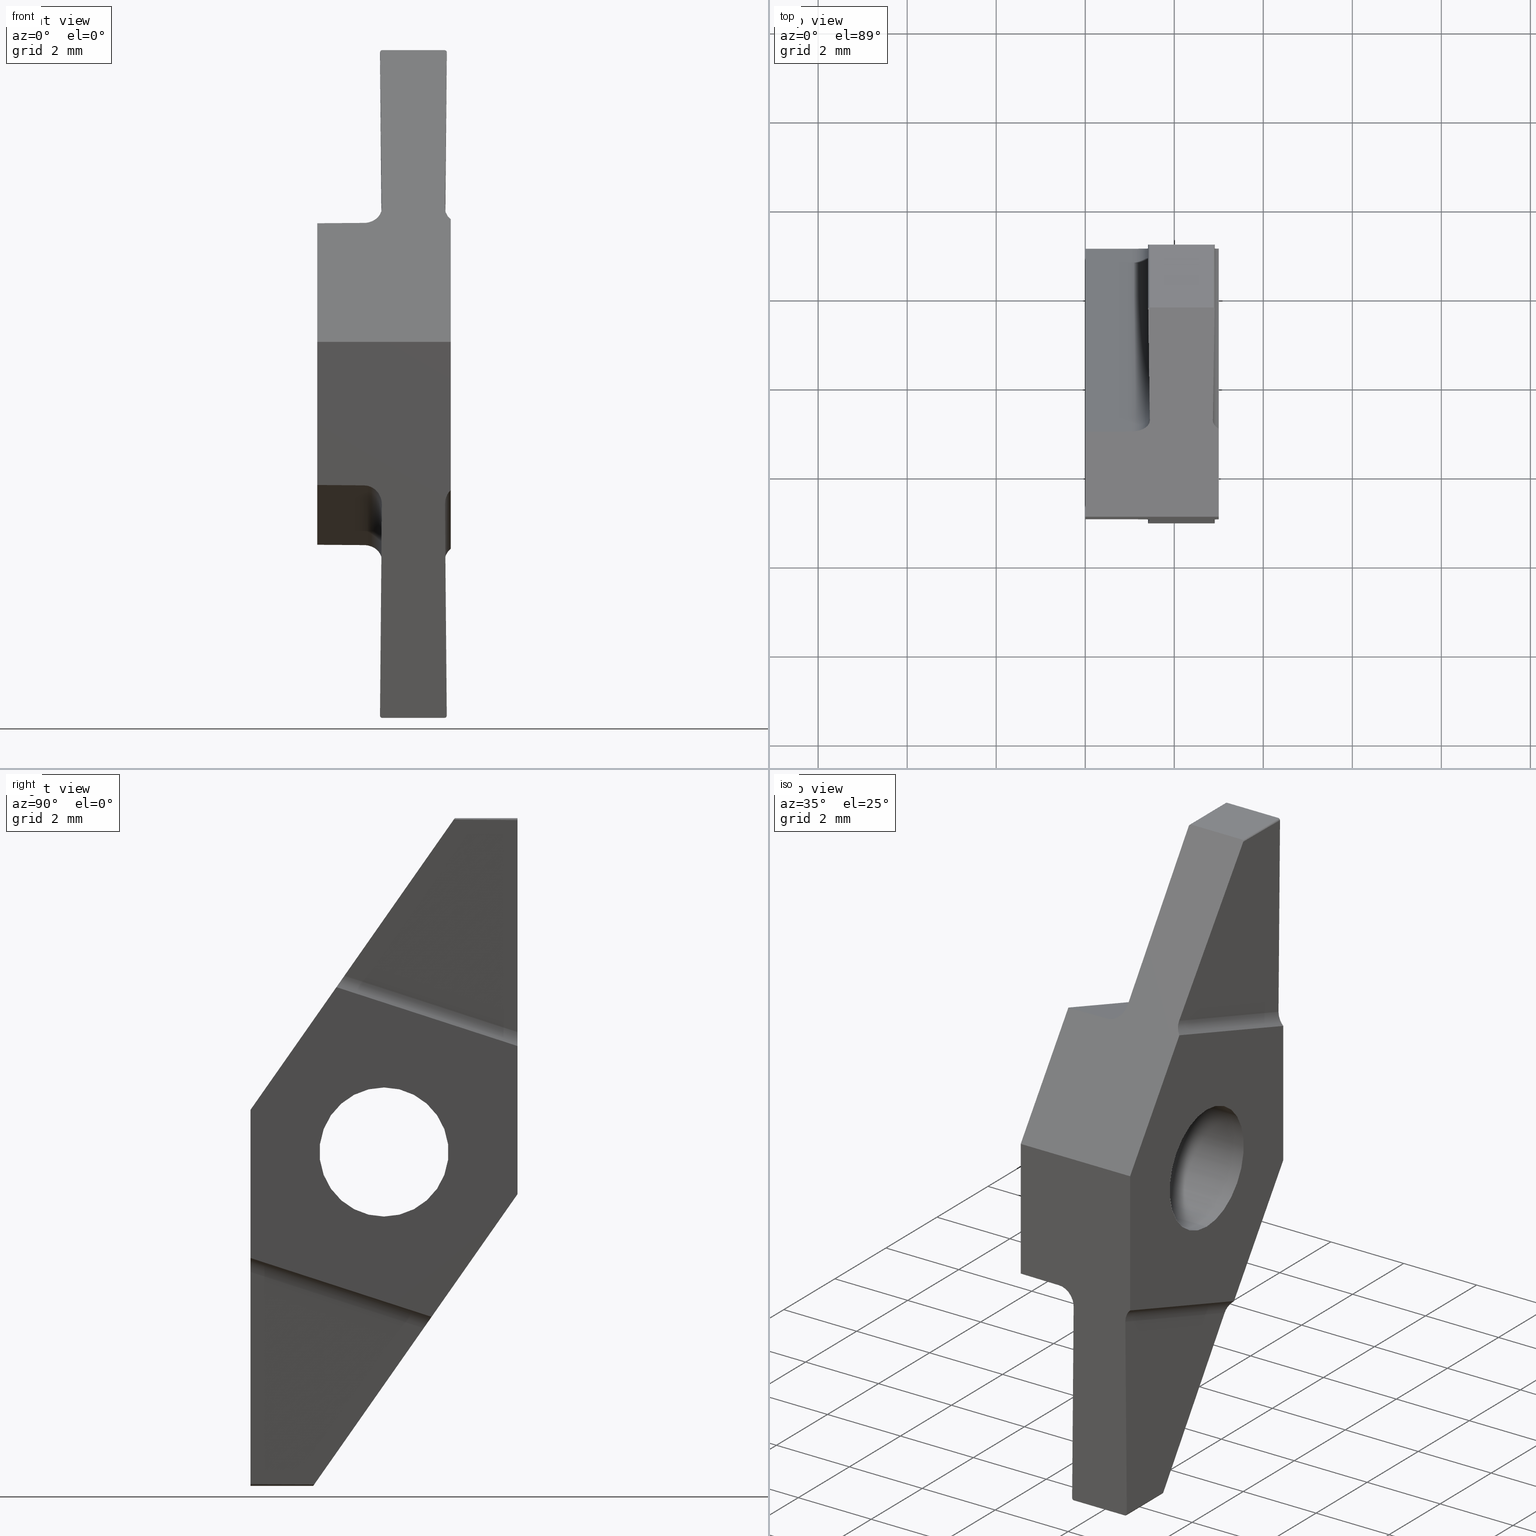
[diagram: canonical four-view strip — front | top / right | iso, engineering-drawing reading convention]
A machine part, canonical four-view strip (front | top / right | iso — engineering-drawing reading convention). The complete STEP part file that produces these views, byte-faithful:
ISO-10303-21;
HEADER;
FILE_DESCRIPTION (( 'STEP AP214' ),
    '1' );
FILE_NAME ('1602-CUT-1602-01-123 stp.step',
    '2023-05-23T11:51:25',
    ( '' ),
    ( '' ),
    'SwSTEP 2.0',
    'SolidWorks 2022',
    '' );
FILE_SCHEMA (( 'AUTOMOTIVE_DESIGN' ));
ENDSEC;

DATA;
#1 = EDGE_CURVE ( 'NONE', #51, #306, #344, .T. ) ;
#2 = LINE ( 'NONE', #312, #338 ) ;
#3 = MECHANICAL_DESIGN_GEOMETRIC_PRESENTATION_REPRESENTATION (  '', ( #170 ), #425 ) ;
#4 = ORIENTED_EDGE ( 'NONE', *, *, #228, .F. ) ;
#5 = SURFACE_STYLE_USAGE ( .BOTH. , #239 ) ;
#6 = CARTESIAN_POINT ( 'NONE',  ( 3.000000000000000000, 1.823566348508409707, 7.834663032647361192 ) ) ;
#7 = LINE ( 'NONE', #537, #221 ) ;
#8 = DIRECTION ( 'NONE',  ( -0.000000000000000000, 0.9510565162951555296, -0.3090169943749410675 ) ) ;
#9 = ORIENTED_EDGE ( 'NONE', *, *, #369, .F. ) ;
#10 = CARTESIAN_POINT ( 'NONE',  ( 3.000000000000000000, -1.069273574088523526, 3.703259463367000848 ) ) ;
#11 = CARTESIAN_POINT ( 'NONE',  ( 1.289238112131137370, -1.127075876279473032, 3.620709220707892140 ) ) ;
#12 = VERTEX_POINT ( 'NONE', #148 ) ;
#13 = EDGE_CURVE ( 'NONE', #261, #553, #333, .T. ) ;
#14 = VECTOR ( 'NONE', #67, 1000.000000000000114 ) ;
#15 = LINE ( 'NONE', #16, #158 ) ;
#16 = CARTESIAN_POINT ( 'NONE',  ( 6.758715055971984346E-18, 3.960821204758893543, -4.530197881483450040 ) ) ;
#17 = FACE_OUTER_BOUND ( 'NONE', #267, .T. ) ;
#18 = ORIENTED_EDGE ( 'NONE', *, *, #490, .T. ) ;
#19 = EDGE_CURVE ( 'NONE', #51, #448, #642, .T. ) ;
#20 = DIRECTION ( 'NONE',  ( 1.000000000000000000, 0.000000000000000000, -0.000000000000000000 ) ) ;
#21 = EDGE_LOOP ( 'NONE', ( #472 ) ) ;
#22 = CARTESIAN_POINT ( 'NONE',  ( 6.758715055971984346E-18, 3.960821204758893543, -4.530197881483450040 ) ) ;
#23 = DIRECTION ( 'NONE',  ( 0.000000000000000000, -0.5735764363510442720, -0.8191520442889930198 ) ) ;
#24 = ORIENTED_EDGE ( 'NONE', *, *, #77, .T. ) ;
#25 = LINE ( 'NONE', #411, #299 ) ;
#26 = DIRECTION ( 'NONE',  ( 5.093655730767995543E-19, -0.9510565162951555296, 0.3090169943749410120 ) ) ;
#27 = CARTESIAN_POINT ( 'NONE',  ( 2.971722154336991384, -2.999999999999830802, -2.294423796453480602 ) ) ;
#28 = PLANE ( 'NONE',  #657 ) ;
#29 = ORIENTED_EDGE ( 'NONE', *, *, #630, .F. ) ;
#30 = ORIENTED_EDGE ( 'NONE', *, *, #483, .T. ) ;
#31 = FACE_BOUND ( 'NONE', #81, .T. ) ;
#32 = CARTESIAN_POINT ( 'NONE',  ( 2.909998096153209701, -3.000000000000002665, -7.449563673225081395 ) ) ;
#33 = VERTEX_POINT ( 'NONE', #652 ) ;
#34 = ADVANCED_FACE ( 'NONE', ( #404 ), #209, .F. ) ;
#35 = FACE_BOUND ( 'NONE', #99, .T. ) ;
#36 = ORIENTED_EDGE ( 'NONE', *, *, #319, .F. ) ;
#37 = PLANE ( 'NONE',  #720 ) ;
#38 = EDGE_LOOP ( 'NONE', ( #293, #315, #102, #253 ) ) ;
#39 = EDGE_CURVE ( 'NONE', #567, #747, #153, .T. ) ;
#40 = ORIENTED_EDGE ( 'NONE', *, *, #355, .T. ) ;
#41 = AXIS2_PLACEMENT_3D ( 'NONE', #122, #733, #55 ) ;
#42 = CARTESIAN_POINT ( 'NONE',  ( 2.910057527824267520, 2.999999999999988454, 7.456373868186558340 ) ) ;
#43 = VERTEX_POINT ( 'NONE', #95 ) ;
#44 = CARTESIAN_POINT ( 'NONE',  ( 1.451432179471501271, -0.8861363315425921927, 3.964806551268740265 ) ) ;
#45 = DIRECTION ( 'NONE',  ( 0.000000000000000000, 0.000000000000000000, -1.000000000000000000 ) ) ;
#46 = DIRECTION ( 'NONE',  ( 0.000000000000000000, -0.3090169943749408454, -0.9510565162951556406 ) ) ;
#47 = ORIENTED_EDGE ( 'NONE', *, *, #778, .F. ) ;
#48 = ADVANCED_FACE ( 'NONE', ( #587 ), #762, .T. ) ;
#49 = VERTEX_POINT ( 'NONE', #100 ) ;
#50 = CARTESIAN_POINT ( 'NONE',  ( 2.860000000000000764, -1.589232770288270036, -7.500000000000000000 ) ) ;
#51 = VERTEX_POINT ( 'NONE', #676 ) ;
#52 = CIRCLE ( 'NONE', #705, 0.05000000000000056483 ) ;
#53 = VECTOR ( 'NONE', #562, 1000.000000000000227 ) ;
#54 = DIRECTION ( 'NONE',  ( 0.000000000000000000, 0.000000000000000000, 1.000000000000000000 ) ) ;
#55 = DIRECTION ( 'NONE',  ( 0.000000000000000000, 0.000000000000000000, 1.000000000000000000 ) ) ;
#56 = CARTESIAN_POINT ( 'NONE',  ( 2.868520297534491004, -2.999999999999830802, -2.696678719166964555 ) ) ;
#57 =( LENGTH_UNIT ( ) NAMED_UNIT ( * ) SI_UNIT ( .MILLI., .METRE. ) );
#58 = ORIENTED_EDGE ( 'NONE', *, *, #91, .T. ) ;
#59 = CARTESIAN_POINT ( 'NONE',  ( 2.860000000000000764, 1.589232770288270036, 7.500000000000000000 ) ) ;
#60 = FACE_OUTER_BOUND ( 'NONE', #476, .T. ) ;
#61 = COLOUR_RGB ( '',0.8000000000000000444, 0.8000000000000000444, 0.8000000000000000444 ) ;
#62 = ORIENTED_EDGE ( 'NONE', *, *, #655, .T. ) ;
#63 = LINE ( 'NONE', #142, #434 ) ;
#64 = CARTESIAN_POINT ( 'NONE',  ( 0.000000000000000000, 0.000000000000000000, 0.000000000000000000 ) ) ;
#65 = EDGE_CURVE ( 'NONE', #448, #396, #343, .T. ) ;
#66 = DIRECTION ( 'NONE',  ( 0.000000000000000000, 0.000000000000000000, 1.000000000000000000 ) ) ;
#67 = DIRECTION ( 'NONE',  ( -0.9999623398293699950, -0.004977867723314927453, -0.007109131866878152899 ) ) ;
#68 = DIRECTION ( 'NONE',  ( 0.000000000000000000, -0.5735764363510442720, -0.8191520442889930198 ) ) ;
#69 = CARTESIAN_POINT ( 'NONE',  ( 2.906109499133116447, -1.567762207338842861, -7.469336858320145822 ) ) ;
#70 = AXIS2_PLACEMENT_3D ( 'NONE', #611, #194, #128 ) ;
#71 = DIRECTION ( 'NONE',  ( 0.000000000000000000, -1.000000000000000000, -4.847819058262091306E-17 ) ) ;
#72 = MECHANICAL_DESIGN_GEOMETRIC_PRESENTATION_REPRESENTATION (  '', ( #363 ), #130 ) ;
#73 = DIRECTION ( 'NONE',  ( 5.093655730767995543E-19, 0.9510565162951555296, -0.3090169943749410120 ) ) ;
#74 = CARTESIAN_POINT ( 'NONE',  ( 2.868520297534491004, 0.8892426552336960555, -3.960370261281475290 ) ) ;
#75 = EDGE_LOOP ( 'NONE', ( #768, #609, #528, #340 ) ) ;
#76 = DIRECTION ( 'NONE',  ( 0.008774687666367915473, 0.5735543546259364023, 0.8191205083172947710 ) ) ;
#77 = EDGE_CURVE ( 'NONE', #391, #773, #430, .T. ) ;
#78 = ORIENTED_EDGE ( 'NONE', *, *, #750, .F. ) ;
#79 = CYLINDRICAL_SURFACE ( 'NONE', #690, 1.449999999999999289 ) ;
#80 = CARTESIAN_POINT ( 'NONE',  ( 1.460000000000000409, 1.589232770288606211, 7.500000000000000000 ) ) ;
#81 = EDGE_LOOP ( 'NONE', ( #406 ) ) ;
#82 = ORIENTED_EDGE ( 'NONE', *, *, #665, .F. ) ;
#83 = CARTESIAN_POINT ( 'NONE',  ( 2.914005233789451310, -1.022563786041261302, 3.769967954062046100 ) ) ;
#84 = DIRECTION ( 'NONE',  ( 0.000000000000000000, -1.000000000000000000, -0.000000000000000000 ) ) ;
#85 = VERTEX_POINT ( 'NONE', #548 ) ;
#86 = CIRCLE ( 'NONE', #539, 1.449999999999999067 ) ;
#87 = DIRECTION ( 'NONE',  ( 0.000000000000000000, -4.847819058262091306E-17, 1.000000000000000000 ) ) ;
#88 = VERTEX_POINT ( 'NONE', #669 ) ;
#89 = DIRECTION ( 'NONE',  ( 0.000000000000000000, -0.9510565162951557516, 0.3090169943749410675 ) ) ;
#90 = CARTESIAN_POINT ( 'NONE',  ( 2.908743354924325342, -2.515967305518679087, -7.463056325603251828 ) ) ;
#91 = EDGE_CURVE ( 'NONE', #49, #647, #2, .T. ) ;
#92 = VERTEX_POINT ( 'NONE', #493 ) ;
#93 =( BOUNDED_CURVE ( )  B_SPLINE_CURVE ( 3, ( #124, #602, #664, #59 ),
 .UNSPECIFIED., .F., .F. ) 
 B_SPLINE_CURVE_WITH_KNOTS ( ( 4, 4 ),
 ( 1.967887147254286484, 3.141592653589793116 ),
 .UNSPECIFIED. ) 
 CURVE ( )  GEOMETRIC_REPRESENTATION_ITEM ( )  RATIONAL_B_SPLINE_CURVE ( ( 1.000000000000000000, 0.8884583775857104460, 0.8884583775857104460, 1.000000000000000000 ) ) 
 REPRESENTATION_ITEM ( '' )  );
#94 = CARTESIAN_POINT ( 'NONE',  ( 1.411256645075674498, -2.515967305519214658, -7.463056325603257157 ) ) ;
#95 = CARTESIAN_POINT ( 'NONE',  ( -4.303015114662157645E-16, 1.133493774764669171, -3.611543511778783966 ) ) ;
#96 = CARTESIAN_POINT ( 'NONE',  ( 3.000000000000000000, 0.000000000000000000, -1.449999999999999067 ) ) ;
#97 = LINE ( 'NONE', #307, #689 ) ;
#98 = EDGE_CURVE ( 'NONE', #508, #140, #605, .T. ) ;
#99 = EDGE_LOOP ( 'NONE', ( #770 ) ) ;
#100 = CARTESIAN_POINT ( 'NONE',  ( 0.000000000000000000, 3.000000000000169198, -0.9458963666369446521 ) ) ;
#101 = FILL_AREA_STYLE ('',( #598 ) ) ;
#102 = ORIENTED_EDGE ( 'NONE', *, *, #119, .F. ) ;
#103 = PRODUCT_RELATED_PRODUCT_CATEGORY ( 'part', '', ( #181 ) ) ;
#104 = ADVANCED_FACE ( 'NONE', ( #683 ), #371, .T. ) ;
#105 = CARTESIAN_POINT ( 'NONE',  ( 3.268503458906062864, 2.335775009216123799, -4.426518001695876947 ) ) ;
#106 = VECTOR ( 'NONE', #568, 1000.000000000000000 ) ;
#107 = CARTESIAN_POINT ( 'NONE',  ( 2.908743354924325342, 2.515967305518679087, 7.463056325603251828 ) ) ;
#108 = CARTESIAN_POINT ( 'NONE',  ( 2.910029920781017410, -1.824019181218809571, -7.835309744780587948 ) ) ;
#109 = ORIENTED_EDGE ( 'NONE', *, *, #778, .T. ) ;
#110 = CARTESIAN_POINT ( 'NONE',  ( 3.000000000000000000, 0.000000000000000000, 0.000000000000000000 ) ) ;
#111 = ADVANCED_FACE ( 'NONE', ( #427 ), #368, .T. ) ;
#112 = CARTESIAN_POINT ( 'NONE',  ( 1.451432179471500605, -2.999999999999830802, -2.702124314904428726 ) ) ;
#113 = ORIENTED_EDGE ( 'NONE', *, *, #39, .T. ) ;
#114 = FILL_AREA_STYLE_COLOUR ( '', #61 ) ;
#115 = ORIENTED_EDGE ( 'NONE', *, *, #180, .F. ) ;
#116 = PLANE ( 'NONE',  #734 ) ;
#117 = PLANE ( 'NONE',  #529 ) ;
#118 = VECTOR ( 'NONE', #248, 1000.000000000000114 ) ;
#119 = EDGE_CURVE ( 'NONE', #177, #85, #156, .T. ) ;
#120 = COLOUR_RGB ( '',0.8000000000000000444, 0.8000000000000000444, 0.8000000000000000444 ) ;
#121 = DIRECTION ( 'NONE',  ( 0.000000000000000000, 1.000000000000000000, -4.847819058262091306E-17 ) ) ;
#122 = CARTESIAN_POINT ( 'NONE',  ( 1.460000000000000409, -23.53959590644414490, -7.450000000000001954 ) ) ;
#123 = EDGE_CURVE ( 'NONE', #567, #33, #544, .T. ) ;
#124 = CARTESIAN_POINT ( 'NONE',  ( 2.906109499133116447, 1.567762207338842861, 7.469336858320145822 ) ) ;
#125 = CARTESIAN_POINT ( 'NONE',  ( 1.460000000000000409, 2.999999999999832578, 7.500000000000003553 ) ) ;
#126 = ORIENTED_EDGE ( 'NONE', *, *, #175, .F. ) ;
#127 = CARTESIAN_POINT ( 'NONE',  ( 3.000000000000000000, 3.000000000000169198, -0.9458963666369446521 ) ) ;
#128 = DIRECTION ( 'NONE',  ( 0.000000000000000000, 0.000000000000000000, -1.000000000000000000 ) ) ;
#129 = VECTOR ( 'NONE', #450, 1000.000000000000114 ) ;
#130 =( GEOMETRIC_REPRESENTATION_CONTEXT ( 3 ) GLOBAL_UNCERTAINTY_ASSIGNED_CONTEXT ( ( #200 ) ) GLOBAL_UNIT_ASSIGNED_CONTEXT ( ( #701, #607, #675 ) ) REPRESENTATION_CONTEXT ( 'NONE', 'WORKASPACE' ) );
#131 = EDGE_CURVE ( 'NONE', #234, #599, #251, .T. ) ;
#132 = DIRECTION ( 'NONE',  ( -0.000000000000000000, -1.000000000000000000, 4.847819058262091306E-17 ) ) ;
#133 = ORIENTED_EDGE ( 'NONE', *, *, #98, .F. ) ;
#134 = LINE ( 'NONE', #27, #173 ) ;
#135 = CARTESIAN_POINT ( 'NONE',  ( 1.054768801550696189, 3.000000000000168754, 2.277694797982560360 ) ) ;
#136 = PRODUCT_DEFINITION_CONTEXT ( 'detailed design', #362, 'design' ) ;
#137 = FACE_OUTER_BOUND ( 'NONE', #286, .T. ) ;
#138 = CARTESIAN_POINT ( 'NONE',  ( 3.379357527985992173E-18, -2.999999999999831246, -2.268489970101723152 ) ) ;
#139 = EDGE_CURVE ( 'NONE', #266, #49, #489, .T. ) ;
#140 = VERTEX_POINT ( 'NONE', #125 ) ;
#141 = VECTOR ( 'NONE', #702, 1000.000000000000000 ) ;
#142 = CARTESIAN_POINT ( 'NONE',  ( 1.460000000000000409, -23.53959590644414490, -7.500000000000003553 ) ) ;
#143 =( BOUNDED_CURVE ( )  B_SPLINE_CURVE ( 3, ( #56, #304, #730, #746 ),
 .UNSPECIFIED., .F., .F. ) 
 B_SPLINE_CURVE_WITH_KNOTS ( ( 4, 4 ),
 ( 1.561620612498219485, 2.405687101123587190 ),
 .UNSPECIFIED. ) 
 CURVE ( )  GEOMETRIC_REPRESENTATION_ITEM ( )  RATIONAL_B_SPLINE_CURVE ( ( 1.000000000000000000, 0.9415053179130717931, 0.9415053179130717931, 1.000000000000000000 ) ) 
 REPRESENTATION_ITEM ( '' )  );
#144 = FACE_OUTER_BOUND ( 'NONE', #717, .T. ) ;
#145 = PLANE ( 'NONE',  #461 ) ;
#146 = ORIENTED_EDGE ( 'NONE', *, *, #674, .T. ) ;
#147 = CARTESIAN_POINT ( 'NONE',  ( 1.451432179471500605, 0.8861363315428182341, -3.964806551268897916 ) ) ;
#148 = CARTESIAN_POINT ( 'NONE',  ( 0.000000000000000000, -2.999999999999830802, 0.9458963666369446521 ) ) ;
#149 = CARTESIAN_POINT ( 'NONE',  ( 1.439224571821669851, -1.589232770288272478, -7.500000000000003553 ) ) ;
#150 = ORIENTED_EDGE ( 'NONE', *, *, #551, .F. ) ;
#151 =( BOUNDED_CURVE ( )  B_SPLINE_CURVE ( 3, ( #444, #522, #749, #265 ),
 .UNSPECIFIED., .F., .F. ) 
 B_SPLINE_CURVE_WITH_KNOTS ( ( 4, 4 ),
 ( 1.967887147254286484, 3.141592653589793116 ),
 .UNSPECIFIED. ) 
 CURVE ( )  GEOMETRIC_REPRESENTATION_ITEM ( )  RATIONAL_B_SPLINE_CURVE ( ( 1.000000000000000000, 0.8884583775857104460, 0.8884583775857104460, 1.000000000000000000 ) ) 
 REPRESENTATION_ITEM ( '' )  );
#152 = LINE ( 'NONE', #219, #550 ) ;
#153 = LINE ( 'NONE', #582, #311 ) ;
#154 = CARTESIAN_POINT ( 'NONE',  ( 1.421925131091382966, -1.581177407767045073, -7.488495750071727741 ) ) ;
#155 = ORIENTED_EDGE ( 'NONE', *, *, #446, .T. ) ;
#156 = CIRCLE ( 'NONE', #192, 0.05000000000000056483 ) ;
#157 = ADVANCED_FACE ( 'NONE', ( #60 ), #552, .F. ) ;
#158 = VECTOR ( 'NONE', #210, 1000.000000000000114 ) ;
#159 = EDGE_LOOP ( 'NONE', ( #320, #766, #133, #18, #226, #317, #150, #278, #58, #109, #639 ) ) ;
#160 = CARTESIAN_POINT ( 'NONE',  ( 1.410001903846790583, -3.000000000000314859, -7.449563673225082283 ) ) ;
#161 = PRESENTATION_STYLE_ASSIGNMENT (( #5 ) ) ;
#162 = EDGE_LOOP ( 'NONE', ( #593, #613, #673, #531 ) ) ;
#163 = ORIENTED_EDGE ( 'NONE', *, *, #131, .T. ) ;
#164 = ORIENTED_EDGE ( 'NONE', *, *, #418, .F. ) ;
#165 = PRODUCT_DEFINITION_SHAPE ( 'NONE', 'NONE',  #510 ) ;
#166 = ORIENTED_EDGE ( 'NONE', *, *, #635, .T. ) ;
#167 = CARTESIAN_POINT ( 'NONE',  ( 10.00000000000000000, -3.000000000000169198, -7.500000000000000000 ) ) ;
#168 = ORIENTED_EDGE ( 'NONE', *, *, #606, .F. ) ;
#169 = EDGE_CURVE ( 'NONE', #88, #422, #275, .T. ) ;
#170 = STYLED_ITEM ( 'NONE', ( #161 ), #308 ) ;
#171 = CARTESIAN_POINT ( 'NONE',  ( 2.971722154336991384, 2.999999999999830802, 2.294423796453480602 ) ) ;
#172 = LINE ( 'NONE', #783, #482 ) ;
#173 = VECTOR ( 'NONE', #326, 999.9999999999998863 ) ;
#174 = ORIENTED_EDGE ( 'NONE', *, *, #381, .T. ) ;
#175 = EDGE_CURVE ( 'NONE', #460, #659, #628, .T. ) ;
#176 = CARTESIAN_POINT ( 'NONE',  ( 2.836744459594391365, 2.999999999999830802, -0.9444716571197171451 ) ) ;
#177 = VERTEX_POINT ( 'NONE', #686 ) ;
#178 = CARTESIAN_POINT ( 'NONE',  ( 10.00000000000000000, -3.000000000000169198, -7.500000000000000000 ) ) ;
#179 = CARTESIAN_POINT ( 'NONE',  ( 3.000000000000000000, 1.069273574088523526, -3.703259463367000848 ) ) ;
#180 = EDGE_CURVE ( 'NONE', #659, #636, #336, .T. ) ;
#181 = PRODUCT ( '1602-CUT-1602-01-123 stp', '1602-CUT-1602-01-123 stp', '', ( #361 ) ) ;
#182 = ORIENTED_EDGE ( 'NONE', *, *, #426, .F. ) ;
#183 = CARTESIAN_POINT ( 'NONE',  ( 3.000000000000000000, -2.999999999999830802, 0.9458963666369446521 ) ) ;
#184 = LINE ( 'NONE', #779, #203 ) ;
#185 = EDGE_CURVE ( 'NONE', #295, #460, #151, .T. ) ;
#186 = LINE ( 'NONE', #176, #560 ) ;
#187 = CARTESIAN_POINT ( 'NONE',  ( 3.000000000000000000, 3.000000000000169198, -0.9458963666369446521 ) ) ;
#188 = DIRECTION ( 'NONE',  ( 0.000000000000000000, -0.3090169943749418446, -0.9510565162951553075 ) ) ;
#189 = DIRECTION ( 'NONE',  ( 0.000000000000000000, -4.847819058262091306E-17, 1.000000000000000000 ) ) ;
#190 = CARTESIAN_POINT ( 'NONE',  ( 1.054768801550695079, -2.999999999999830802, -2.277694797982669606 ) ) ;
#191 = EDGE_CURVE ( 'NONE', #291, #51, #367, .T. ) ;
#192 = AXIS2_PLACEMENT_3D ( 'NONE', #617, #608, #66 ) ;
#193 = CARTESIAN_POINT ( 'NONE',  ( 1.409942472175732320, 3.000000000000333511, 7.456373868186561005 ) ) ;
#194 = DIRECTION ( 'NONE',  ( 0.000000000000000000, -1.000000000000000000, -0.000000000000000000 ) ) ;
#195 = ORIENTED_EDGE ( 'NONE', *, *, #19, .F. ) ;
#196 = DIRECTION ( 'NONE',  ( 0.000000000000000000, 0.5735764363510442720, 0.8191520442889930198 ) ) ;
#197 = DIRECTION ( 'NONE',  ( 0.000000000000000000, 0.3090169943749418446, 0.9510565162951553075 ) ) ;
#198 = CARTESIAN_POINT ( 'NONE',  ( 1.460000000000000409, 23.53959590644414490, 7.500000000000003553 ) ) ;
#199 = CLOSED_SHELL ( 'NONE', ( #542, #767, #409, #479, #414, #157, #615, #497, #640, #247, #392, #685, #48, #104, #712, #534, #111, #309, #437, #34, #289, #263, #739 ) ) ;
#200 = UNCERTAINTY_MEASURE_WITH_UNIT (LENGTH_MEASURE( 1.000000000000000082E-05 ), #701, 'distance_accuracy_value', 'NONE');
#201 = DIRECTION ( 'NONE',  ( 2.704990084213471555E-20, 0.9510565162951556406, -0.3090169943749410675 ) ) ;
#202 = ORIENTED_EDGE ( 'NONE', *, *, #332, .F. ) ;
#203 = VECTOR ( 'NONE', #722, 1000.000000000000114 ) ;
#204 = EDGE_LOOP ( 'NONE', ( #603, #467, #346, #398 ) ) ;
#205 = CARTESIAN_POINT ( 'NONE',  ( 2.914005233789451310, 2.999999999999831246, 2.462957750624114261 ) ) ;
#206 = CARTESIAN_POINT ( 'NONE',  ( 3.000000000000000000, -2.999999999999830802, 0.9458963666369446521 ) ) ;
#207 = ORIENTED_EDGE ( 'NONE', *, *, #524, .T. ) ;
#208 = EDGE_CURVE ( 'NONE', #85, #417, #744, .T. ) ;
#209 = PLANE ( 'NONE',  #445 ) ;
#210 = DIRECTION ( 'NONE',  ( 0.000000000000000000, -0.9510565162951555296, 0.3090169943749411230 ) ) ;
#211 = LINE ( 'NONE', #571, #777 ) ;
#212 = ORIENTED_EDGE ( 'NONE', *, *, #585, .T. ) ;
#213 = EDGE_CURVE ( 'NONE', #85, #295, #250, .T. ) ;
#214 = FACE_OUTER_BOUND ( 'NONE', #601, .T. ) ;
#215 = CARTESIAN_POINT ( 'NONE',  ( 1.483383476474299911, 2.999999999999830802, -0.9591316785270335155 ) ) ;
#216 = DIRECTION ( 'NONE',  ( 0.000000000000000000, 0.000000000000000000, 1.000000000000000000 ) ) ;
#217 = CARTESIAN_POINT ( 'NONE',  ( 1.289238112131089409, 2.999999999999829914, 2.279740980657094962 ) ) ;
#218 = VERTEX_POINT ( 'NONE', #138 ) ;
#219 = CARTESIAN_POINT ( 'NONE',  ( 1.410099431060302333, -1.815564143878643177, -7.823234700056299395 ) ) ;
#220 = AXIS2_PLACEMENT_3D ( 'NONE', #222, #464, #711 ) ;
#221 = VECTOR ( 'NONE', #302, 1000.000000000000000 ) ;
#222 = CARTESIAN_POINT ( 'NONE',  ( 2.860000000000000764, -31.03959590644372213, -7.449999999999999289 ) ) ;
#223 = CARTESIAN_POINT ( 'NONE',  ( 3.268503458906062864, -2.335775009216123799, 4.426518001695876947 ) ) ;
#224 = DIRECTION ( 'NONE',  ( 0.000000000000000000, -4.847819058262091306E-17, -1.000000000000000000 ) ) ;
#225 = ORIENTED_EDGE ( 'NONE', *, *, #319, .T. ) ;
#226 = ORIENTED_EDGE ( 'NONE', *, *, #301, .T. ) ;
#227 = CARTESIAN_POINT ( 'NONE',  ( 1.460000000000000409, -2.999999999999832578, -7.500000000000003553 ) ) ;
#228 = EDGE_CURVE ( 'NONE', #586, #234, #287, .T. ) ;
#229 = ORIENTED_EDGE ( 'NONE', *, *, #524, .F. ) ;
#230 = APPLICATION_PROTOCOL_DEFINITION ( 'draft international standard', 'automotive_design', 1998, #663 ) ;
#231 = EDGE_LOOP ( 'NONE', ( #506, #164, #353, #348 ) ) ;
#232 = AXIS2_PLACEMENT_3D ( 'NONE', #501, #688, #188 ) ;
#233 = AXIS2_PLACEMENT_3D ( 'NONE', #223, #89, #46 ) ;
#234 = VERTEX_POINT ( 'NONE', #563 ) ;
#235 = CARTESIAN_POINT ( 'NONE',  ( 1.054768801550694191, -1.128243077449439635, 3.619042284683054778 ) ) ;
#236 = ORIENTED_EDGE ( 'NONE', *, *, #175, .T. ) ;
#237 = CARTESIAN_POINT ( 'NONE',  ( 2.860000000000000764, 3.000000000000169198, 7.500000000000000000 ) ) ;
#238 = EDGE_CURVE ( 'NONE', #140, #261, #638, .T. ) ;
#239 = SURFACE_SIDE_STYLE ('',( #649 ) ) ;
#240 = CARTESIAN_POINT ( 'NONE',  ( 0.000000000000000000, 0.000000000000000000, 0.000000000000000000 ) ) ;
#241 = PLANE ( 'NONE',  #359 ) ;
#242 = CARTESIAN_POINT ( 'NONE',  ( 2.910438247308825055, -29.66724040110625538, 1.164711650497192164 ) ) ;
#243 = VECTOR ( 'NONE', #610, 1000.000000000000000 ) ;
#244 = CARTESIAN_POINT ( 'NONE',  ( 1.054768801550694857, -2.998973231275688267, -2.278028415364619974 ) ) ;
#245 = ORIENTED_EDGE ( 'NONE', *, *, #624, .T. ) ;
#246 = CARTESIAN_POINT ( 'NONE',  ( 2.868520297534491004, 0.8892426552336960555, -3.960370261281475290 ) ) ;
#247 = ADVANCED_FACE ( 'NONE', ( #382 ), #145, .F. ) ;
#248 = DIRECTION ( 'NONE',  ( -0.008726535498373853145, -4.847634468166900475E-17, -0.9999619230641713097 ) ) ;
#249 = VERTEX_POINT ( 'NONE', #74 ) ;
#250 =( BOUNDED_CURVE ( )  B_SPLINE_CURVE ( 3, ( #32, #511, #90, #69 ),
 .UNSPECIFIED., .F., .F. ) 
 B_SPLINE_CURVE_WITH_KNOTS ( ( 4, 4 ),
 ( 3.141592653589812212, 3.547410120309146375 ),
 .UNSPECIFIED. ) 
 CURVE ( )  GEOMETRIC_REPRESENTATION_ITEM ( )  RATIONAL_B_SPLINE_CURVE ( ( 1.000000000000000000, 0.9863230376731891846, 0.9863230376731891846, 1.000000000000000000 ) ) 
 REPRESENTATION_ITEM ( '' )  );
#251 = LINE ( 'NONE', #244, #349 ) ;
#252 = DIRECTION ( 'NONE',  ( 0.000000000000000000, 0.000000000000000000, -1.000000000000000000 ) ) ;
#253 = ORIENTED_EDGE ( 'NONE', *, *, #578, .T. ) ;
#254 = CARTESIAN_POINT ( 'NONE',  ( 1.411256645075674276, 2.515967305519234198, 7.463056325603256269 ) ) ;
#255 = CARTESIAN_POINT ( 'NONE',  ( 1.054768801550694191, -1.128243077449439635, 3.619042284683054778 ) ) ;
#256 = VECTOR ( 'NONE', #395, 1000.000000000000227 ) ;
#257 = CIRCLE ( 'NONE', #272, 1.449999999999999512 ) ;
#258 = DIRECTION ( 'NONE',  ( -0.000000000000000000, -0.9510565162951555296, 0.3090169943749410675 ) ) ;
#259 = CARTESIAN_POINT ( 'NONE',  ( 1.451432179471500605, 0.8861363315428182341, -3.964806551268897916 ) ) ;
#260 = CARTESIAN_POINT ( 'NONE',  ( 2.868520297534491004, -0.8892426552336960555, 3.960370261281475290 ) ) ;
#261 = VERTEX_POINT ( 'NONE', #80 ) ;
#262 = CARTESIAN_POINT ( 'NONE',  ( 3.000000000000000000, -2.427050983125038197, 4.144428086663038080 ) ) ;
#263 = ADVANCED_FACE ( 'NONE', ( #17 ), #269, .T. ) ;
#264 = LINE ( 'NONE', #451, #666 ) ;
#265 = CARTESIAN_POINT ( 'NONE',  ( 2.860000000000000764, -1.589232770288270036, -7.500000000000000000 ) ) ;
#266 = VERTEX_POINT ( 'NONE', #330 ) ;
#267 = EDGE_LOOP ( 'NONE', ( #776, #331, #629, #442 ) ) ;
#268 = CARTESIAN_POINT ( 'NONE',  ( 2.868520297534491004, 2.999999999999830802, 2.696678719166964555 ) ) ;
#269 = CYLINDRICAL_SURFACE ( 'NONE', #708, 0.05000000000000056483 ) ;
#270 = EDGE_LOOP ( 'NONE', ( #29, #581, #595, #714 ) ) ;
#271 = VECTOR ( 'NONE', #298, 1000.000000000000114 ) ;
#272 = AXIS2_PLACEMENT_3D ( 'NONE', #684, #588, #706 ) ;
#273 = EDGE_LOOP ( 'NONE', ( #277 ) ) ;
#274 = PLANE ( 'NONE',  #513 ) ;
#275 = LINE ( 'NONE', #206, #677 ) ;
#276 = EDGE_CURVE ( 'NONE', #697, #88, #211, .T. ) ;
#277 = ORIENTED_EDGE ( 'NONE', *, *, #462, .F. ) ;
#278 = ORIENTED_EDGE ( 'NONE', *, *, #139, .T. ) ;
#279 = FACE_OUTER_BOUND ( 'NONE', #621, .T. ) ;
#280 = DIRECTION ( 'NONE',  ( 0.000000000000000000, -4.847819058262091306E-17, -1.000000000000000000 ) ) ;
#281 = ORIENTED_EDGE ( 'NONE', *, *, #301, .F. ) ;
#282 = CARTESIAN_POINT ( 'NONE',  ( 1.413890500866887612, -1.567762207338846414, -7.469336858320151151 ) ) ;
#283 = ORIENTED_EDGE ( 'NONE', *, *, #91, .F. ) ;
#284 = CARTESIAN_POINT ( 'NONE',  ( 1.453583646786359873, -2.999999999999829914, -2.455590579497275883 ) ) ;
#285 = LINE ( 'NONE', #589, #271 ) ;
#286 = EDGE_LOOP ( 'NONE', ( #236, #555, #212, #429, #347, #751, #738, #703, #225, #590, #694 ) ) ;
#287 =( BOUNDED_CURVE ( )  B_SPLINE_CURVE ( 3, ( #259, #499, #696, #741 ),
 .UNSPECIFIED., .F., .F. ) 
 B_SPLINE_CURVE_WITH_KNOTS ( ( 4, 4 ),
 ( 4.703213266088005717, 6.274885753270529776 ),
 .UNSPECIFIED. ) 
 CURVE ( )  GEOMETRIC_REPRESENTATION_ITEM ( )  RATIONAL_B_SPLINE_CURVE ( ( 1.000000000000000000, 0.8045312959125143770, 0.8045312959125143770, 1.000000000000000000 ) ) 
 REPRESENTATION_ITEM ( '' )  );
#288 = VECTOR ( 'NONE', #671, 1000.000000000000000 ) ;
#289 = ADVANCED_FACE ( 'NONE', ( #577 ), #28, .F. ) ;
#290 = VECTOR ( 'NONE', #653, 1000.000000000000000 ) ;
#291 = VERTEX_POINT ( 'NONE', #400 ) ;
#292 = CARTESIAN_POINT ( 'NONE',  ( 2.906109499133116447, 1.567762207338842861, 7.469336858320145822 ) ) ;
#293 = ORIENTED_EDGE ( 'NONE', *, *, #185, .F. ) ;
#294 = SURFACE_STYLE_FILL_AREA ( #101 ) ;
#295 = VERTEX_POINT ( 'NONE', #480 ) ;
#296 = VERTEX_POINT ( 'NONE', #526 ) ;
#297 = ORIENTED_EDGE ( 'NONE', *, *, #483, .F. ) ;
#298 = DIRECTION ( 'NONE',  ( -0.000000000000000000, 0.9510565162951555296, -0.3090169943749411230 ) ) ;
#299 = VECTOR ( 'NONE', #474, 1000.000000000000227 ) ;
#300 = EDGE_LOOP ( 'NONE', ( #420, #569, #281, #519 ) ) ;
#301 = EDGE_CURVE ( 'NONE', #92, #33, #186, .T. ) ;
#302 = DIRECTION ( 'NONE',  ( 0.000000000000000000, 1.000000000000000000, 0.000000000000000000 ) ) ;
#303 = DIRECTION ( 'NONE',  ( -1.000000000000000000, 0.000000000000000000, 0.000000000000000000 ) ) ;
#304 = CARTESIAN_POINT ( 'NONE',  ( 2.867455770228641843, -2.999999999999831246, -2.574695972163809188 ) ) ;
#305 = CARTESIAN_POINT ( 'NONE',  ( 2.868520297534491004, 28.25557969565815952, -5.509356563732108469 ) ) ;
#306 = VERTEX_POINT ( 'NONE', #366 ) ;
#307 = CARTESIAN_POINT ( 'NONE',  ( 0.000000000000000000, -2.999999999999830802, 0.9458963666369446521 ) ) ;
#308 = MANIFOLD_SOLID_BREP ( 'Kombinieren1', #199 ) ;
#309 = ADVANCED_FACE ( 'NONE', ( #729 ), #667, .F. ) ;
#310 =( BOUNDED_CURVE ( )  B_SPLINE_CURVE ( 3, ( #179, #670, #466, #246 ),
 .UNSPECIFIED., .F., .F. ) 
 B_SPLINE_CURVE_WITH_KNOTS ( ( 4, 4 ),
 ( 0.7359055524662067027, 1.579972041091574297 ),
 .UNSPECIFIED. ) 
 CURVE ( )  GEOMETRIC_REPRESENTATION_ITEM ( )  RATIONAL_B_SPLINE_CURVE ( ( 1.000000000000000000, 0.9415053179130719041, 0.9415053179130719041, 1.000000000000000000 ) ) 
 REPRESENTATION_ITEM ( '' )  );
#311 = VECTOR ( 'NONE', #520, 1000.000000000000114 ) ;
#312 = CARTESIAN_POINT ( 'NONE',  ( 0.000000000000000000, 3.000000000000169198, -0.9458963666369446521 ) ) ;
#313 = AXIS2_PLACEMENT_3D ( 'NONE', #407, #651, #45 ) ;
#314 = CARTESIAN_POINT ( 'NONE',  ( 0.000000000000000000, 1.823566348508409707, 7.834663032647361192 ) ) ;
#315 = ORIENTED_EDGE ( 'NONE', *, *, #213, .F. ) ;
#316 = DIRECTION ( 'NONE',  ( 0.000000000000000000, 1.000000000000000000, 0.000000000000000000 ) ) ;
#317 = ORIENTED_EDGE ( 'NONE', *, *, #721, .T. ) ;
#318 = CARTESIAN_POINT ( 'NONE',  ( 1.421925131091472450, 1.581177407767084819, 7.488495750071781920 ) ) ;
#319 = EDGE_CURVE ( 'NONE', #500, #249, #310, .T. ) ;
#320 = ORIENTED_EDGE ( 'NONE', *, *, #1, .T. ) ;
#321 = LINE ( 'NONE', #742, #106 ) ;
#322 = FACE_OUTER_BOUND ( 'NONE', #273, .T. ) ;
#323 = AXIS2_PLACEMENT_3D ( 'NONE', #339, #20, #507 ) ;
#324 = AXIS2_PLACEMENT_3D ( 'NONE', #22, #695, #691 ) ;
#325 = EDGE_CURVE ( 'NONE', #747, #553, #93, .T. ) ;
#326 = DIRECTION ( 'NONE',  ( 0.9999619230641714207, -4.230466510160072040E-19, -0.008726535498370404514 ) ) ;
#327 = ORIENTED_EDGE ( 'NONE', *, *, #545, .F. ) ;
#328 = ORIENTED_EDGE ( 'NONE', *, *, #591, .F. ) ;
#329 = PLANE ( 'NONE',  #324 ) ;
#330 = CARTESIAN_POINT ( 'NONE',  ( 3.000000000000000000, 3.000000000000169198, -0.9458963666369446521 ) ) ;
#331 = ORIENTED_EDGE ( 'NONE', *, *, #732, .F. ) ;
#332 = EDGE_CURVE ( 'NONE', #88, #12, #405, .T. ) ;
#333 = LINE ( 'NONE', #575, #415 ) ;
#334 = DIRECTION ( 'NONE',  ( 0.000000000000000000, -0.8191520442889931308, 0.5735764363510443831 ) ) ;
#335 = CARTESIAN_POINT ( 'NONE',  ( 2.860000000000000764, 31.03959590644372213, 7.449999999999999289 ) ) ;
#336 =( BOUNDED_CURVE ( )  B_SPLINE_CURVE ( 3, ( #452, #149, #154, #632 ),
 .UNSPECIFIED., .F., .F. ) 
 B_SPLINE_CURVE_WITH_KNOTS ( ( 4, 4 ),
 ( 3.141592653589793116, 4.315298159925236909 ),
 .UNSPECIFIED. ) 
 CURVE ( )  GEOMETRIC_REPRESENTATION_ITEM ( )  RATIONAL_B_SPLINE_CURVE ( ( 1.000000000000000000, 0.8884583775857219923, 0.8884583775857219923, 1.000000000000000000 ) ) 
 REPRESENTATION_ITEM ( '' )  );
#337 = ORIENTED_EDGE ( 'NONE', *, *, #13, .F. ) ;
#338 = VECTOR ( 'NONE', #189, 1000.000000000000000 ) ;
#339 = CARTESIAN_POINT ( 'NONE',  ( 3.000000000000000000, 0.000000000000000000, 0.000000000000000000 ) ) ;
#340 = ORIENTED_EDGE ( 'NONE', *, *, #698, .T. ) ;
#341 = CARTESIAN_POINT ( 'NONE',  ( 3.000000000000000000, -1.589232770288268926, -7.500000000000000000 ) ) ;
#342 = ORIENTED_EDGE ( 'NONE', *, *, #191, .F. ) ;
#343 =( BOUNDED_CURVE ( )  B_SPLINE_CURVE ( 3, ( #364, #374, #11, #255 ),
 .UNSPECIFIED., .F., .F. ) 
 B_SPLINE_CURVE_WITH_KNOTS ( ( 4, 4 ),
 ( 4.703213266088004829, 6.274885753270529776 ),
 .UNSPECIFIED. ) 
 CURVE ( )  GEOMETRIC_REPRESENTATION_ITEM ( )  RATIONAL_B_SPLINE_CURVE ( ( 1.000000000000000000, 0.8045312959125141550, 0.8045312959125141550, 1.000000000000000000 ) ) 
 REPRESENTATION_ITEM ( '' )  );
#344 = LINE ( 'NONE', #215, #129 ) ;
#345 =( NAMED_UNIT ( * ) SI_UNIT ( $, .STERADIAN. ) SOLID_ANGLE_UNIT ( ) );
#346 = ORIENTED_EDGE ( 'NONE', *, *, #585, .F. ) ;
#347 = ORIENTED_EDGE ( 'NONE', *, *, #564, .T. ) ;
#348 = ORIENTED_EDGE ( 'NONE', *, *, #238, .T. ) ;
#349 = VECTOR ( 'NONE', #484, 1000.000000000000227 ) ;
#350 = PLANE ( 'NONE',  #323 ) ;
#351 = FACE_OUTER_BOUND ( 'NONE', #162, .T. ) ;
#352 = ORIENTED_EDGE ( 'NONE', *, *, #276, .F. ) ;
#353 = ORIENTED_EDGE ( 'NONE', *, *, #98, .T. ) ;
#354 =( NAMED_UNIT ( * ) SI_UNIT ( $, .STERADIAN. ) SOLID_ANGLE_UNIT ( ) );
#355 = EDGE_CURVE ( 'NONE', #12, #218, #97, .T. ) ;
#356 = ORIENTED_EDGE ( 'NONE', *, *, #65, .T. ) ;
#357 = DIRECTION ( 'NONE',  ( 0.000000000000000000, 0.000000000000000000, 1.000000000000000000 ) ) ;
#358 = CARTESIAN_POINT ( 'NONE',  ( 10.00000000000000000, -3.000000000000169198, 7.500000000000000000 ) ) ;
#359 = AXIS2_PLACEMENT_3D ( 'NONE', #183, #121, #372 ) ;
#360 = VECTOR ( 'NONE', #26, 1000.000000000000114 ) ;
#361 = PRODUCT_CONTEXT ( 'NONE', #663, 'mechanical' ) ;
#362 = APPLICATION_CONTEXT ( 'automotive_design' ) ;
#363 = STYLED_ITEM ( 'NONE', ( #718 ), #378 ) ;
#364 = CARTESIAN_POINT ( 'NONE',  ( 1.451432179471501271, -0.8861363315425921927, 3.964806551268740265 ) ) ;
#365 = CARTESIAN_POINT ( 'NONE',  ( 0.000000000000000000, -1.133493774764394724, 3.611543511778694704 ) ) ;
#366 = CARTESIAN_POINT ( 'NONE',  ( 1.410001903846790805, 3.000000000000168754, 7.449563673225082283 ) ) ;
#367 =( BOUNDED_CURVE ( )  B_SPLINE_CURVE ( 3, ( #135, #217, #758, #584 ),
 .UNSPECIFIED., .F., .F. ) 
 B_SPLINE_CURVE_WITH_KNOTS ( ( 4, 4 ),
 ( 3.149892207498850460, 4.721564694681115171 ),
 .UNSPECIFIED. ) 
 CURVE ( )  GEOMETRIC_REPRESENTATION_ITEM ( )  RATIONAL_B_SPLINE_CURVE ( ( 1.000000000000000000, 0.8045312959125754393, 0.8045312959125754393, 1.000000000000000000 ) ) 
 REPRESENTATION_ITEM ( '' )  );
#368 = CYLINDRICAL_SURFACE ( 'NONE', #70, 0.05000000000000143219 ) ;
#369 = EDGE_CURVE ( 'NONE', #516, #647, #285, .T. ) ;
#370 = DIRECTION ( 'NONE',  ( 0.008299458626915803133, -0.3090063514897841701, -0.9510237608627201134 ) ) ;
#371 = CYLINDRICAL_SURFACE ( 'NONE', #41, 0.05000000000000143219 ) ;
#372 = DIRECTION ( 'NONE',  ( 0.000000000000000000, 4.847819058262091306E-17, 1.000000000000000000 ) ) ;
#373 = AXIS2_PLACEMENT_3D ( 'NONE', #127, #71, #436 ) ;
#374 = CARTESIAN_POINT ( 'NONE',  ( 1.453583646786360761, -1.026766231340057400, 3.763966240185128154 ) ) ;
#375 = VECTOR ( 'NONE', #713, 1000.000000000000114 ) ;
#376 = LINE ( 'NONE', #314, #402 ) ;
#377 = CARTESIAN_POINT ( 'NONE',  ( 10.00000000000000000, 3.000000000000169198, 7.500000000000000000 ) ) ;
#378 = ADVANCED_BREP_SHAPE_REPRESENTATION ( '1602-CUT-1602-01-123 stp', ( #308, #580 ), #709 ) ;
#379 = DIRECTION ( 'NONE',  ( 0.000000000000000000, -0.5735764363510442720, -0.8191520442889930198 ) ) ;
#380 = CARTESIAN_POINT ( 'NONE',  ( 3.000000000000000000, 2.427050983125038197, -4.144428086663038080 ) ) ;
#381 = EDGE_CURVE ( 'NONE', #457, #448, #184, .T. ) ;
#382 = FACE_OUTER_BOUND ( 'NONE', #204, .T. ) ;
#383 = AXIS2_PLACEMENT_3D ( 'NONE', #727, #370, #660 ) ;
#384 = PRODUCT_DEFINITION_FORMATION_WITH_SPECIFIED_SOURCE ( 'ANY', '', #181, .NOT_KNOWN. ) ;
#385 = ORIENTED_EDGE ( 'NONE', *, *, #681, .T. ) ;
#386 = FACE_OUTER_BOUND ( 'NONE', #723, .T. ) ;
#387 = LINE ( 'NONE', #108, #375 ) ;
#388 = CARTESIAN_POINT ( 'NONE',  ( 1.451432179471500383, 1.002540241998005177, -4.002628474494319910 ) ) ;
#389 = CARTESIAN_POINT ( 'NONE',  ( 1.453192802157977859, -29.66724040110625538, 6.164334712623246837 ) ) ;
#390 =( BOUNDED_CURVE ( )  B_SPLINE_CURVE ( 3, ( #627, #83, #682, #753 ),
 .UNSPECIFIED., .F., .F. ) 
 B_SPLINE_CURVE_WITH_KNOTS ( ( 4, 4 ),
 ( 0.7359055524662067027, 1.579972041091574297 ),
 .UNSPECIFIED. ) 
 CURVE ( )  GEOMETRIC_REPRESENTATION_ITEM ( )  RATIONAL_B_SPLINE_CURVE ( ( 1.000000000000000000, 0.9415053179130719041, 0.9415053179130719041, 1.000000000000000000 ) ) 
 REPRESENTATION_ITEM ( '' )  );
#391 = VERTEX_POINT ( 'NONE', #424 ) ;
#392 = ADVANCED_FACE ( 'NONE', ( #784 ), #37, .F. ) ;
#393 = ORIENTED_EDGE ( 'NONE', *, *, #551, .T. ) ;
#394 = LINE ( 'NONE', #380, #53 ) ;
#395 = DIRECTION ( 'NONE',  ( -0.008726535498366836188, 4.847634468166900475E-17, 0.9999619230641713097 ) ) ;
#396 = VERTEX_POINT ( 'NONE', #235 ) ;
#397 = CARTESIAN_POINT ( 'NONE',  ( 3.000000000000000000, 3.000000000000169198, -0.9458963666369446521 ) ) ;
#398 = ORIENTED_EDGE ( 'NONE', *, *, #545, .T. ) ;
#399 = VERTEX_POINT ( 'NONE', #96 ) ;
#400 = CARTESIAN_POINT ( 'NONE',  ( 1.054768801550696189, 3.000000000000168754, 2.277694797982560360 ) ) ;
#401 = ORIENTED_EDGE ( 'NONE', *, *, #276, .T. ) ;
#402 = VECTOR ( 'NONE', #379, 1000.000000000000227 ) ;
#403 = VECTOR ( 'NONE', #416, 1000.000000000000114 ) ;
#404 = FACE_OUTER_BOUND ( 'NONE', #75, .T. ) ;
#405 = LINE ( 'NONE', #546, #243 ) ;
#406 = ORIENTED_EDGE ( 'NONE', *, *, #726, .F. ) ;
#407 = CARTESIAN_POINT ( 'NONE',  ( 1.460000000000000409, 2.999999999999829026, 7.450000000000001954 ) ) ;
#408 = ORIENTED_EDGE ( 'NONE', *, *, #208, .T. ) ;
#409 = ADVANCED_FACE ( 'NONE', ( #421 ), #117, .T. ) ;
#410 = ORIENTED_EDGE ( 'NONE', *, *, #332, .T. ) ;
#411 = CARTESIAN_POINT ( 'NONE',  ( 3.000000000000000000, -1.823566348508072199, -7.834663032647361192 ) ) ;
#412 = ORIENTED_EDGE ( 'NONE', *, *, #750, .T. ) ;
#413 = ORIENTED_EDGE ( 'NONE', *, *, #503, .F. ) ;
#414 = ADVANCED_FACE ( 'NONE', ( #543 ), #782, .F. ) ;
#415 = VECTOR ( 'NONE', #458, 1000.000000000000000 ) ;
#416 = DIRECTION ( 'NONE',  ( -0.9999623398293699950, 0.004977867723314927453, 0.007109131866878152899 ) ) ;
#417 = VERTEX_POINT ( 'NONE', #614 ) ;
#418 = EDGE_CURVE ( 'NONE', #508, #553, #321, .T. ) ;
#419 =( NAMED_UNIT ( * ) PLANE_ANGLE_UNIT ( ) SI_UNIT ( $, .RADIAN. ) );
#420 = ORIENTED_EDGE ( 'NONE', *, *, #39, .F. ) ;
#421 = FACE_OUTER_BOUND ( 'NONE', #231, .T. ) ;
#422 = VERTEX_POINT ( 'NONE', #433 ) ;
#423 = DIRECTION ( 'NONE',  ( -0.000000000000000000, 1.000000000000000000, -4.847819058262091306E-17 ) ) ;
#424 = CARTESIAN_POINT ( 'NONE',  ( 1.451432179471500605, -2.999999999999830802, -2.702124314904428726 ) ) ;
#425 =( GEOMETRIC_REPRESENTATION_CONTEXT ( 3 ) GLOBAL_UNCERTAINTY_ASSIGNED_CONTEXT ( ( #502 ) ) GLOBAL_UNIT_ASSIGNED_CONTEXT ( ( #57, #419, #354 ) ) REPRESENTATION_CONTEXT ( 'NONE', 'WORKASPACE' ) );
#426 = EDGE_CURVE ( 'NONE', #43, #49, #487, .T. ) ;
#427 = FACE_OUTER_BOUND ( 'NONE', #270, .T. ) ;
#428 = FACE_OUTER_BOUND ( 'NONE', #715, .T. ) ;
#429 = ORIENTED_EDGE ( 'NONE', *, *, #228, .T. ) ;
#430 = LINE ( 'NONE', #679, #118 ) ;
#431 = DIRECTION ( 'NONE',  ( -1.000000000000000000, 0.000000000000000000, 0.000000000000000000 ) ) ;
#432 = EDGE_CURVE ( 'NONE', #697, #680, #618, .T. ) ;
#433 = CARTESIAN_POINT ( 'NONE',  ( 3.000000000000000000, -2.999999999999831246, -2.381072329785649977 ) ) ;
#434 = VECTOR ( 'NONE', #316, 1000.000000000000000 ) ;
#435 = ORIENTED_EDGE ( 'NONE', *, *, #325, .T. ) ;
#436 = DIRECTION ( 'NONE',  ( 0.000000000000000000, 4.847819058262091306E-17, -1.000000000000000000 ) ) ;
#437 = ADVANCED_FACE ( 'NONE', ( #386 ), #439, .F. ) ;
#438 = LINE ( 'NONE', #388, #626 ) ;
#439 = CYLINDRICAL_SURFACE ( 'NONE', #232, 0.4000000000000002442 ) ;
#440 = UNCERTAINTY_MEASURE_WITH_UNIT (LENGTH_MEASURE( 1.000000000000000082E-05 ), #465, 'distance_accuracy_value', 'NONE');
#441 = DIRECTION ( 'NONE',  ( 0.000000000000000000, 0.5735764363510442720, 0.8191520442889930198 ) ) ;
#442 = ORIENTED_EDGE ( 'NONE', *, *, #418, .T. ) ;
#443 = DIRECTION ( 'NONE',  ( 0.000000000000000000, 0.000000000000000000, 1.000000000000000000 ) ) ;
#444 = CARTESIAN_POINT ( 'NONE',  ( 2.906109499133116447, -1.567762207338842861, -7.469336858320145822 ) ) ;
#445 = AXIS2_PLACEMENT_3D ( 'NONE', #704, #454, #700 ) ;
#446 = EDGE_CURVE ( 'NONE', #728, #659, #63, .T. ) ;
#447 = VECTOR ( 'NONE', #775, 999.9999999999998863 ) ;
#448 = VERTEX_POINT ( 'NONE', #44 ) ;
#449 = FACE_OUTER_BOUND ( 'NONE', #540, .T. ) ;
#450 = DIRECTION ( 'NONE',  ( -0.008726535498373853145, 4.847634468166900475E-17, 0.9999619230641713097 ) ) ;
#451 = CARTESIAN_POINT ( 'NONE',  ( 2.868520297534491004, -28.25557969565815952, 5.509356563732108469 ) ) ;
#452 = CARTESIAN_POINT ( 'NONE',  ( 1.460000000000000409, -1.589232770288270036, -7.500000000000003553 ) ) ;
#453 = EDGE_LOOP ( 'NONE', ( #412, #155, #126, #650 ) ) ;
#454 = DIRECTION ( 'NONE',  ( 0.9999579034289297619, 0.002835411865495975157, 0.008726500419548532950 ) ) ;
#455 = CARTESIAN_POINT ( 'NONE',  ( 3.000000000000000000, 2.999999999999831246, 2.381072329785649977 ) ) ;
#456 = DIRECTION ( 'NONE',  ( 0.008726535498366836188, 0.000000000000000000, 0.9999619230641714207 ) ) ;
#457 = VERTEX_POINT ( 'NONE', #541 ) ;
#458 = DIRECTION ( 'NONE',  ( 1.000000000000000000, 0.000000000000000000, 0.000000000000000000 ) ) ;
#459 = CARTESIAN_POINT ( 'NONE',  ( 2.836744459594391365, -2.999999999999830802, 0.9444716571197171451 ) ) ;
#460 = VERTEX_POINT ( 'NONE', #50 ) ;
#461 = AXIS2_PLACEMENT_3D ( 'NONE', #389, #644, #566 ) ;
#462 = EDGE_CURVE ( 'NONE', #399, #399, #86, .T. ) ;
#463 = CARTESIAN_POINT ( 'NONE',  ( 2.860000000000000764, 1.589232770288270036, 7.500000000000000000 ) ) ;
#464 = DIRECTION ( 'NONE',  ( 0.000000000000000000, 1.000000000000000000, 0.000000000000000000 ) ) ;
#465 =( LENGTH_UNIT ( ) NAMED_UNIT ( * ) SI_UNIT ( .MILLI., .METRE. ) );
#466 = CARTESIAN_POINT ( 'NONE',  ( 2.867455770228641843, 0.9588251059263569465, -3.860996223020519480 ) ) ;
#467 = ORIENTED_EDGE ( 'NONE', *, *, #606, .T. ) ;
#468 = ORIENTED_EDGE ( 'NONE', *, *, #503, .T. ) ;
#469 = CARTESIAN_POINT ( 'NONE',  ( 2.909998096153209701, 3.000000000000002665, 7.449563673225081395 ) ) ;
#470 = ORIENTED_EDGE ( 'NONE', *, *, #169, .F. ) ;
#471 = SURFACE_STYLE_USAGE ( .BOTH. , #772 ) ;
#472 = ORIENTED_EDGE ( 'NONE', *, *, #726, .T. ) ;
#473 = EDGE_CURVE ( 'NONE', #500, #266, #25, .T. ) ;
#474 = DIRECTION ( 'NONE',  ( 0.000000000000000000, 0.5735764363510442720, 0.8191520442889930198 ) ) ;
#475 = VECTOR ( 'NONE', #196, 1000.000000000000227 ) ;
#476 = EDGE_LOOP ( 'NONE', ( #337, #755, #174, #356, #468, #30, #202, #352, #166, #113, #435 ) ) ;
#477 =( BOUNDED_CURVE ( )  B_SPLINE_CURVE ( 3, ( #282, #94, #761, #641 ),
 .UNSPECIFIED., .F., .F. ) 
 B_SPLINE_CURVE_WITH_KNOTS ( ( 4, 4 ),
 ( 2.735775186870361253, 3.141592653589801110 ),
 .UNSPECIFIED. ) 
 CURVE ( )  GEOMETRIC_REPRESENTATION_ITEM ( )  RATIONAL_B_SPLINE_CURVE ( ( 1.000000000000000000, 0.9863230376731820792, 0.9863230376731820792, 1.000000000000000000 ) ) 
 REPRESENTATION_ITEM ( '' )  );
#478 = ORIENTED_EDGE ( 'NONE', *, *, #624, .F. ) ;
#479 = ADVANCED_FACE ( 'NONE', ( #725 ), #116, .F. ) ;
#480 = CARTESIAN_POINT ( 'NONE',  ( 2.906109499133116447, -1.567762207338842861, -7.469336858320145822 ) ) ;
#481 = VECTOR ( 'NONE', #737, 1000.000000000000000 ) ;
#482 = VECTOR ( 'NONE', #592, 1000.000000000000227 ) ;
#483 = EDGE_CURVE ( 'NONE', #516, #12, #376, .T. ) ;
#484 = DIRECTION ( 'NONE',  ( -4.336808689942016773E-19, -0.9510565162951556406, 0.3090169943749410120 ) ) ;
#485 = CARTESIAN_POINT ( 'NONE',  ( 2.860000000000000764, 2.999999999999829026, 7.449999999999999289 ) ) ;
#486 = ORIENTED_EDGE ( 'NONE', *, *, #355, .F. ) ;
#487 = LINE ( 'NONE', #496, #475 ) ;
#488 = DIRECTION ( 'NONE',  ( 1.000000000000000000, 0.000000000000000000, 0.000000000000000000 ) ) ;
#489 = LINE ( 'NONE', #187, #288 ) ;
#490 = EDGE_CURVE ( 'NONE', #508, #92, #52, .T. ) ;
#491 = AXIS2_PLACEMENT_3D ( 'NONE', #6, #692, #441 ) ;
#492 = CARTESIAN_POINT ( 'NONE',  ( 3.000000000000000000, -1.823566348508072199, -7.834663032647361192 ) ) ;
#493 = CARTESIAN_POINT ( 'NONE',  ( 2.909998096153209701, 3.000000000000002665, 7.449563673225081395 ) ) ;
#494 = AXIS2_PLACEMENT_3D ( 'NONE', #600, #757, #216 ) ;
#495 = EDGE_LOOP ( 'NONE', ( #4, #168, #756, #645 ) ) ;
#496 = CARTESIAN_POINT ( 'NONE',  ( 0.000000000000000000, -1.823566348508072199, -7.834663032647361192 ) ) ;
#497 = ADVANCED_FACE ( 'NONE', ( #428 ), #241, .F. ) ;
#498 = CARTESIAN_POINT ( 'NONE',  ( 1.410001903846790805, 3.000000000000168754, 7.449563673225082283 ) ) ;
#499 = CARTESIAN_POINT ( 'NONE',  ( 1.453583646786359873, 1.026766231340057622, -3.763966240185128154 ) ) ;
#500 = VERTEX_POINT ( 'NONE', #672 ) ;
#501 = CARTESIAN_POINT ( 'NONE',  ( 1.051449018099928523, -3.834513433123825088, 4.918933230862002404 ) ) ;
#502 = UNCERTAINTY_MEASURE_WITH_UNIT (LENGTH_MEASURE( 1.000000000000000082E-05 ), #57, 'distance_accuracy_value', 'NONE');
#503 = EDGE_CURVE ( 'NONE', #396, #516, #620, .T. ) ;
#504 = CARTESIAN_POINT ( 'NONE',  ( 1.413890500866886502, 1.567762207339183478, 7.469336858320151151 ) ) ;
#505 = DIRECTION ( 'NONE',  ( 0.000000000000000000, 0.000000000000000000, -1.000000000000000000 ) ) ;
#506 = ORIENTED_EDGE ( 'NONE', *, *, #13, .T. ) ;
#507 = DIRECTION ( 'NONE',  ( 0.000000000000000000, 0.000000000000000000, 1.000000000000000000 ) ) ;
#508 = VERTEX_POINT ( 'NONE', #237 ) ;
#509 = CARTESIAN_POINT ( 'NONE',  ( 2.867455770228641843, 2.999999999999831246, 2.574695972163809188 ) ) ;
#510 = PRODUCT_DEFINITION ( 'UNKNOWN', '', #384, #136 ) ;
#511 = CARTESIAN_POINT ( 'NONE',  ( 2.910057527824267520, -2.999999999999988454, -7.456373868186558340 ) ) ;
#512 = VECTOR ( 'NONE', #8, 1000.000000000000114 ) ;
#513 = AXIS2_PLACEMENT_3D ( 'NONE', #492, #334, #68 ) ;
#514 = EDGE_LOOP ( 'NONE', ( #115, #533, #82, #327 ) ) ;
#515 = LINE ( 'NONE', #397, #735 ) ;
#516 = VERTEX_POINT ( 'NONE', #365 ) ;
#517 = CARTESIAN_POINT ( 'NONE',  ( 1.460000000000000409, 1.589232770288606211, 7.500000000000000000 ) ) ;
#518 = CARTESIAN_POINT ( 'NONE',  ( 2.910438247308825055, 29.66724040110625538, -1.164711650497192164 ) ) ;
#519 = ORIENTED_EDGE ( 'NONE', *, *, #732, .T. ) ;
#520 = DIRECTION ( 'NONE',  ( 0.008774687666360856883, 0.5735543546259364023, 0.8191205083172948820 ) ) ;
#521 = PLANE ( 'NONE',  #494 ) ;
#522 = CARTESIAN_POINT ( 'NONE',  ( 2.898074868908619539, -1.581177407767039966, -7.488495750071722412 ) ) ;
#523 = ORIENTED_EDGE ( 'NONE', *, *, #597, .F. ) ;
#524 = EDGE_CURVE ( 'NONE', #417, #422, #143, .T. ) ;
#525 = ORIENTED_EDGE ( 'NONE', *, *, #169, .T. ) ;
#526 = CARTESIAN_POINT ( 'NONE',  ( -1.224646799147353885E-17, 0.000000000000000000, -1.449999999999999512 ) ) ;
#527 = DIRECTION ( 'NONE',  ( -0.9999579034289297619, -0.002835411865493694429, -0.008726500419541514258 ) ) ;
#528 = ORIENTED_EDGE ( 'NONE', *, *, #381, .F. ) ;
#529 = AXIS2_PLACEMENT_3D ( 'NONE', #358, #54, #303 ) ;
#530 =( BOUNDED_CURVE ( )  B_SPLINE_CURVE ( 3, ( #517, #748, #318, #637 ),
 .UNSPECIFIED., .F., .F. ) 
 B_SPLINE_CURVE_WITH_KNOTS ( ( 4, 4 ),
 ( 3.141592653589793116, 4.315298159922322796 ),
 .UNSPECIFIED. ) 
 CURVE ( )  GEOMETRIC_REPRESENTATION_ITEM ( )  RATIONAL_B_SPLINE_CURVE ( ( 1.000000000000000000, 0.8884583775862600064, 0.8884583775862600064, 1.000000000000000000 ) ) 
 REPRESENTATION_ITEM ( '' )  );
#531 = ORIENTED_EDGE ( 'NONE', *, *, #123, .F. ) ;
#532 = CARTESIAN_POINT ( 'NONE',  ( 1.289238112131136926, -2.999999999999829914, -2.279740980657095406 ) ) ;
#533 = ORIENTED_EDGE ( 'NONE', *, *, #446, .F. ) ;
#534 = ADVANCED_FACE ( 'NONE', ( #214 ), #574, .F. ) ;
#535 = ORIENTED_EDGE ( 'NONE', *, *, #760, .T. ) ;
#536 =( BOUNDED_CURVE ( )  B_SPLINE_CURVE ( 3, ( #504, #254, #193, #498 ),
 .UNSPECIFIED., .F., .F. ) 
 B_SPLINE_CURVE_WITH_KNOTS ( ( 4, 4 ),
 ( 2.735775186870369691, 3.141592653589801110 ),
 .UNSPECIFIED. ) 
 CURVE ( )  GEOMETRIC_REPRESENTATION_ITEM ( )  RATIONAL_B_SPLINE_CURVE ( ( 1.000000000000000000, 0.9863230376731826343, 0.9863230376731826343, 1.000000000000000000 ) ) 
 REPRESENTATION_ITEM ( '' )  );
#537 = CARTESIAN_POINT ( 'NONE',  ( 2.860000000000000764, -31.03959590644372213, -7.500000000000000000 ) ) ;
#538 = ORIENTED_EDGE ( 'NONE', *, *, #665, .T. ) ;
#539 = AXIS2_PLACEMENT_3D ( 'NONE', #110, #774, #573 ) ;
#540 = EDGE_LOOP ( 'NONE', ( #572, #401, #525, #478, #625, #393 ) ) ;
#541 = CARTESIAN_POINT ( 'NONE',  ( 1.413890500866886502, 1.567762207339183478, 7.469336858320151151 ) ) ;
#542 = ADVANCED_FACE ( 'NONE', ( #35, #449 ), #350, .T. ) ;
#543 = FACE_OUTER_BOUND ( 'NONE', #159, .T. ) ;
#544 = LINE ( 'NONE', #305, #512 ) ;
#545 = EDGE_CURVE ( 'NONE', #636, #773, #477, .T. ) ;
#546 = CARTESIAN_POINT ( 'NONE',  ( 3.000000000000000000, -2.999999999999830802, 0.9458963666369446521 ) ) ;
#547 = APPLICATION_PROTOCOL_DEFINITION ( 'draft international standard', 'automotive_design', 1998, #362 ) ;
#548 = CARTESIAN_POINT ( 'NONE',  ( 2.909998096153209701, -3.000000000000002665, -7.449563673225081395 ) ) ;
#549 = DIRECTION ( 'NONE',  ( -0.008726535498366836188, -4.847634468166900475E-17, -0.9999619230641713097 ) ) ;
#550 = VECTOR ( 'NONE', #76, 1000.000000000000114 ) ;
#551 = EDGE_CURVE ( 'NONE', #266, #680, #515, .T. ) ;
#552 = PLANE ( 'NONE',  #491 ) ;
#553 = VERTEX_POINT ( 'NONE', #463 ) ;
#554 = EDGE_CURVE ( 'NONE', #306, #140, #658, .T. ) ;
#555 = ORIENTED_EDGE ( 'NONE', *, *, #180, .T. ) ;
#556 =( BOUNDED_CURVE ( )  B_SPLINE_CURVE ( 3, ( #716, #532, #284, #112 ),
 .UNSPECIFIED., .F., .F. ) 
 B_SPLINE_CURVE_WITH_KNOTS ( ( 4, 4 ),
 ( 3.149892207498850016, 4.721564694681373631 ),
 .UNSPECIFIED. ) 
 CURVE ( )  GEOMETRIC_REPRESENTATION_ITEM ( )  RATIONAL_B_SPLINE_CURVE ( ( 1.000000000000000000, 0.8045312959125144880, 0.8045312959125144880, 1.000000000000000000 ) ) 
 REPRESENTATION_ITEM ( '' )  );
#557 = CARTESIAN_POINT ( 'NONE',  ( 1.413890500866887612, -1.567762207338846414, -7.469336858320151151 ) ) ;
#558 = EDGE_LOOP ( 'NONE', ( #413, #759, #47, #9 ) ) ;
#559 = DIRECTION ( 'NONE',  ( -0.000000000000000000, 0.9510565162951556406, -0.3090169943749410120 ) ) ;
#560 = VECTOR ( 'NONE', #549, 1000.000000000000227 ) ;
#561 = CIRCLE ( 'NONE', #616, 0.05000000000000143219 ) ;
#562 = DIRECTION ( 'NONE',  ( 0.000000000000000000, -0.9510565162951556406, 0.3090169943749410120 ) ) ;
#563 = CARTESIAN_POINT ( 'NONE',  ( 1.054768801550694857, 1.128243077449713416, -3.619042284683144040 ) ) ;
#564 = EDGE_CURVE ( 'NONE', #234, #43, #771, .T. ) ;
#565 = CARTESIAN_POINT ( 'NONE',  ( 1.460000000000000409, -2.999999999999829026, -7.450000000000001954 ) ) ;
#566 = DIRECTION ( 'NONE',  ( 0.008726535498373853145, 0.000000000000000000, 0.9999619230641713097 ) ) ;
#567 = VERTEX_POINT ( 'NONE', #260 ) ;
#568 = DIRECTION ( 'NONE',  ( 0.000000000000000000, -1.000000000000000000, -0.000000000000000000 ) ) ;
#569 = ORIENTED_EDGE ( 'NONE', *, *, #123, .T. ) ;
#570 = CARTESIAN_POINT ( 'NONE',  ( 0.000000000000000000, 3.000000000000168754, 2.268489970101614794 ) ) ;
#571 = CARTESIAN_POINT ( 'NONE',  ( 3.000000000000000000, 1.823566348508409707, 7.834663032647361192 ) ) ;
#572 = ORIENTED_EDGE ( 'NONE', *, *, #432, .F. ) ;
#573 = DIRECTION ( 'NONE',  ( 0.000000000000000000, 0.000000000000000000, -1.000000000000000000 ) ) ;
#574 = CYLINDRICAL_SURFACE ( 'NONE', #763, 0.4000000000000001332 ) ;
#575 = CARTESIAN_POINT ( 'NONE',  ( 3.000000000000000000, 1.589232770288606211, 7.500000000000000000 ) ) ;
#576 = FACE_OUTER_BOUND ( 'NONE', #21, .T. ) ;
#577 = FACE_OUTER_BOUND ( 'NONE', #300, .T. ) ;
#578 = EDGE_CURVE ( 'NONE', #177, #460, #7, .T. ) ;
#579 = VECTOR ( 'NONE', #559, 1000.000000000000227 ) ;
#580 = AXIS2_PLACEMENT_3D ( 'NONE', #240, #780, #488 ) ;
#581 = ORIENTED_EDGE ( 'NONE', *, *, #238, .F. ) ;
#582 = CARTESIAN_POINT ( 'NONE',  ( 2.910029920781017410, 1.824019181218809571, 7.835309744780587948 ) ) ;
#583 = CARTESIAN_POINT ( 'NONE',  ( 3.000000000000000000, 2.999999999999831246, 2.381072329785649977 ) ) ;
#584 = CARTESIAN_POINT ( 'NONE',  ( 1.451432179471500383, 3.000000000000168754, 2.702124314904319924 ) ) ;
#585 = EDGE_CURVE ( 'NONE', #636, #586, #152, .T. ) ;
#586 = VERTEX_POINT ( 'NONE', #147 ) ;
#587 = FACE_OUTER_BOUND ( 'NONE', #38, .T. ) ;
#588 = DIRECTION ( 'NONE',  ( -1.000000000000000000, 0.000000000000000000, 0.000000000000000000 ) ) ;
#589 = CARTESIAN_POINT ( 'NONE',  ( 6.758715055971984346E-18, -3.960821204758893543, 4.530197881483450040 ) ) ;
#590 = ORIENTED_EDGE ( 'NONE', *, *, #597, .T. ) ;
#591 = EDGE_CURVE ( 'NONE', #396, #291, #172, .T. ) ;
#592 = DIRECTION ( 'NONE',  ( -4.336808689942016773E-19, 0.9510565162951556406, -0.3090169943749410120 ) ) ;
#593 = ORIENTED_EDGE ( 'NONE', *, *, #635, .F. ) ;
#594 = LINE ( 'NONE', #167, #290 ) ;
#595 = ORIENTED_EDGE ( 'NONE', *, *, #554, .F. ) ;
#596 = PRESENTATION_LAYER_ASSIGNMENT (  '', '', ( #170 ) ) ;
#597 = EDGE_CURVE ( 'NONE', #249, #295, #387, .T. ) ;
#598 = FILL_AREA_STYLE_COLOUR ( '', #120 ) ;
#599 = VERTEX_POINT ( 'NONE', #190 ) ;
#600 = CARTESIAN_POINT ( 'NONE',  ( 0.000000000000000000, 0.000000000000000000, 0.000000000000000000 ) ) ;
#601 = EDGE_LOOP ( 'NONE', ( #36, #245, #229, #781 ) ) ;
#602 = CARTESIAN_POINT ( 'NONE',  ( 2.898074868908619539, 1.581177407767039966, 7.488495750071722412 ) ) ;
#603 = ORIENTED_EDGE ( 'NONE', *, *, #77, .F. ) ;
#604 = AXIS2_PLACEMENT_3D ( 'NONE', #743, #201, #197 ) ;
#605 = LINE ( 'NONE', #377, #481 ) ;
#606 = EDGE_CURVE ( 'NONE', #391, #586, #438, .T. ) ;
#607 =( NAMED_UNIT ( * ) PLANE_ANGLE_UNIT ( ) SI_UNIT ( $, .RADIAN. ) );
#608 = DIRECTION ( 'NONE',  ( -0.000000000000000000, -1.000000000000000000, 4.847819058262091306E-17 ) ) ;
#609 = ORIENTED_EDGE ( 'NONE', *, *, #19, .T. ) ;
#610 = DIRECTION ( 'NONE',  ( -1.000000000000000000, 0.000000000000000000, 0.000000000000000000 ) ) ;
#611 = CARTESIAN_POINT ( 'NONE',  ( 1.460000000000000409, 23.53959590644414490, 7.450000000000001954 ) ) ;
#612 = CARTESIAN_POINT ( 'NONE',  ( 3.044514925925334570, -1.118338011413120947, 3.633188184999952774 ) ) ;
#613 = ORIENTED_EDGE ( 'NONE', *, *, #432, .T. ) ;
#614 = CARTESIAN_POINT ( 'NONE',  ( 2.868520297534491004, -2.999999999999830802, -2.696678719166964555 ) ) ;
#615 = ADVANCED_FACE ( 'NONE', ( #137 ), #274, .F. ) ;
#616 = AXIS2_PLACEMENT_3D ( 'NONE', #565, #132, #443 ) ;
#617 = CARTESIAN_POINT ( 'NONE',  ( 2.860000000000000764, -2.999999999999829026, -7.449999999999999289 ) ) ;
#618 = LINE ( 'NONE', #262, #579 ) ;
#619 = CYLINDRICAL_SURFACE ( 'NONE', #604, 0.4000000000000002442 ) ;
#620 = LINE ( 'NONE', #612, #14 ) ;
#621 = EDGE_LOOP ( 'NONE', ( #297, #656, #283, #182, #146, #486 ) ) ;
#622 = DIRECTION ( 'NONE',  ( -1.000000000000000000, 0.000000000000000000, 0.000000000000000000 ) ) ;
#623 = DIRECTION ( 'NONE',  ( -1.000000000000000000, 0.000000000000000000, 0.000000000000000000 ) ) ;
#624 = EDGE_CURVE ( 'NONE', #500, #422, #394, .T. ) ;
#625 = ORIENTED_EDGE ( 'NONE', *, *, #473, .T. ) ;
#626 = VECTOR ( 'NONE', #73, 1000.000000000000114 ) ;
#627 = CARTESIAN_POINT ( 'NONE',  ( 3.000000000000000000, -1.069273574088523526, 3.703259463367000848 ) ) ;
#628 = LINE ( 'NONE', #341, #731 ) ;
#629 = ORIENTED_EDGE ( 'NONE', *, *, #490, .F. ) ;
#630 = EDGE_CURVE ( 'NONE', #261, #457, #530, .T. ) ;
#631 = CARTESIAN_POINT ( 'NONE',  ( 1.460000000000000409, -1.589232770288270036, -7.500000000000003553 ) ) ;
#632 = CARTESIAN_POINT ( 'NONE',  ( 1.413890500866887612, -1.567762207338846414, -7.469336858320151151 ) ) ;
#633 = ORIENTED_EDGE ( 'NONE', *, *, #208, .F. ) ;
#634 =( BOUNDED_CURVE ( )  B_SPLINE_CURVE ( 3, ( #469, #42, #107, #292 ),
 .UNSPECIFIED., .F., .F. ) 
 B_SPLINE_CURVE_WITH_KNOTS ( ( 4, 4 ),
 ( 3.141592653589812212, 3.547410120309146375 ),
 .UNSPECIFIED. ) 
 CURVE ( )  GEOMETRIC_REPRESENTATION_ITEM ( )  RATIONAL_B_SPLINE_CURVE ( ( 1.000000000000000000, 0.9863230376731891846, 0.9863230376731891846, 1.000000000000000000 ) ) 
 REPRESENTATION_ITEM ( '' )  );
#635 = EDGE_CURVE ( 'NONE', #697, #567, #390, .T. ) ;
#636 = VERTEX_POINT ( 'NONE', #557 ) ;
#637 = CARTESIAN_POINT ( 'NONE',  ( 1.413890500866886502, 1.567762207339183478, 7.469336858320151151 ) ) ;
#638 = LINE ( 'NONE', #198, #141 ) ;
#639 = ORIENTED_EDGE ( 'NONE', *, *, #191, .T. ) ;
#640 = ADVANCED_FACE ( 'NONE', ( #322, #576 ), #79, .F. ) ;
#641 = CARTESIAN_POINT ( 'NONE',  ( 1.410001903846790583, -3.000000000000314859, -7.449563673225082283 ) ) ;
#642 = LINE ( 'NONE', #752, #360 ) ;
#643 = CARTESIAN_POINT ( 'NONE',  ( 2.906109499133116447, 1.567762207338842861, 7.469336858320145822 ) ) ;
#644 = DIRECTION ( 'NONE',  ( 0.9999579034289297619, -0.002835411865495975157, -0.008726500419548532950 ) ) ;
#645 = ORIENTED_EDGE ( 'NONE', *, *, #131, .F. ) ;
#646 = DIRECTION ( 'NONE',  ( 0.000000000000000000, 0.9510565162951557516, -0.3090169943749410675 ) ) ;
#647 = VERTEX_POINT ( 'NONE', #570 ) ;
#648 =( NAMED_UNIT ( * ) PLANE_ANGLE_UNIT ( ) SI_UNIT ( $, .RADIAN. ) );
#649 = SURFACE_STYLE_FILL_AREA ( #707 ) ;
#650 = ORIENTED_EDGE ( 'NONE', *, *, #578, .F. ) ;
#651 = DIRECTION ( 'NONE',  ( -0.000000000000000000, 1.000000000000000000, -4.847819058262091306E-17 ) ) ;
#652 = CARTESIAN_POINT ( 'NONE',  ( 2.868520297534491004, 2.999999999999830802, 2.696678719166964555 ) ) ;
#653 = DIRECTION ( 'NONE',  ( -1.000000000000000000, 0.000000000000000000, 0.000000000000000000 ) ) ;
#654 = EDGE_LOOP ( 'NONE', ( #523, #385, #633, #719 ) ) ;
#655 = EDGE_CURVE ( 'NONE', #218, #599, #134, .T. ) ;
#656 = ORIENTED_EDGE ( 'NONE', *, *, #369, .T. ) ;
#657 = AXIS2_PLACEMENT_3D ( 'NONE', #518, #754, #456 ) ;
#658 = CIRCLE ( 'NONE', #313, 0.05000000000000143219 ) ;
#659 = VERTEX_POINT ( 'NONE', #631 ) ;
#660 = DIRECTION ( 'NONE',  ( 0.000000000000000000, 0.9510565162951556406, -0.3090169943749410675 ) ) ;
#661 = SHAPE_DEFINITION_REPRESENTATION ( #165, #378 ) ;
#662 = ORIENTED_EDGE ( 'NONE', *, *, #65, .F. ) ;
#663 = APPLICATION_CONTEXT ( 'automotive_design' ) ;
#664 = CARTESIAN_POINT ( 'NONE',  ( 2.880775428178332209, 1.589232770288268703, 7.500000000000001776 ) ) ;
#665 = EDGE_CURVE ( 'NONE', #773, #728, #561, .T. ) ;
#666 = VECTOR ( 'NONE', #258, 1000.000000000000114 ) ;
#667 = PLANE ( 'NONE',  #383 ) ;
#668 = CARTESIAN_POINT ( 'NONE',  ( 3.044514925925334570, 1.118338011413120947, -3.633188184999952774 ) ) ;
#669 = CARTESIAN_POINT ( 'NONE',  ( 3.000000000000000000, -2.999999999999830802, 0.9458963666369446521 ) ) ;
#670 = CARTESIAN_POINT ( 'NONE',  ( 2.914005233789451310, 1.022563786041261302, -3.769967954062046100 ) ) ;
#671 = DIRECTION ( 'NONE',  ( -1.000000000000000000, 0.000000000000000000, 0.000000000000000000 ) ) ;
#672 = CARTESIAN_POINT ( 'NONE',  ( 3.000000000000000000, 1.069273574088523526, -3.703259463367000848 ) ) ;
#673 = ORIENTED_EDGE ( 'NONE', *, *, #721, .F. ) ;
#674 = EDGE_CURVE ( 'NONE', #43, #218, #15, .T. ) ;
#675 =( NAMED_UNIT ( * ) SI_UNIT ( $, .STERADIAN. ) SOLID_ANGLE_UNIT ( ) );
#676 = CARTESIAN_POINT ( 'NONE',  ( 1.451432179471500383, 3.000000000000168754, 2.702124314904319924 ) ) ;
#677 = VECTOR ( 'NONE', #280, 1000.000000000000000 ) ;
#678 = PRESENTATION_LAYER_ASSIGNMENT (  '', '', ( #363 ) ) ;
#679 = CARTESIAN_POINT ( 'NONE',  ( 1.483383476474299911, -2.999999999999830802, 0.9591316785270335155 ) ) ;
#680 = VERTEX_POINT ( 'NONE', #455 ) ;
#681 = EDGE_CURVE ( 'NONE', #249, #417, #264, .T. ) ;
#682 = CARTESIAN_POINT ( 'NONE',  ( 2.867455770228641843, -0.9588251059263569465, 3.860996223020519480 ) ) ;
#683 = FACE_OUTER_BOUND ( 'NONE', #514, .T. ) ;
#684 = CARTESIAN_POINT ( 'NONE',  ( -1.224646799147353885E-17, 0.000000000000000000, 0.000000000000000000 ) ) ;
#685 = ADVANCED_FACE ( 'NONE', ( #144 ), #329, .F. ) ;
#686 = CARTESIAN_POINT ( 'NONE',  ( 2.860000000000000764, -3.000000000000169198, -7.500000000000000000 ) ) ;
#687 = ORIENTED_EDGE ( 'NONE', *, *, #564, .F. ) ;
#688 = DIRECTION ( 'NONE',  ( 2.704990084213471555E-20, -0.9510565162951556406, 0.3090169943749410675 ) ) ;
#689 = VECTOR ( 'NONE', #224, 1000.000000000000000 ) ;
#690 = AXIS2_PLACEMENT_3D ( 'NONE', #64, #622, #736 ) ;
#691 = DIRECTION ( 'NONE',  ( 0.000000000000000000, -0.9510565162951556406, 0.3090169943749410675 ) ) ;
#692 = DIRECTION ( 'NONE',  ( 0.000000000000000000, 0.8191520442889931308, -0.5735764363510443831 ) ) ;
#693 = ORIENTED_EDGE ( 'NONE', *, *, #674, .F. ) ;
#694 = ORIENTED_EDGE ( 'NONE', *, *, #185, .T. ) ;
#695 = DIRECTION ( 'NONE',  ( 0.008299458626915803133, 0.3090063514897841701, 0.9510237608627201134 ) ) ;
#696 = CARTESIAN_POINT ( 'NONE',  ( 1.289238112131136704, 1.127075876279473032, -3.620709220707891252 ) ) ;
#697 = VERTEX_POINT ( 'NONE', #10 ) ;
#698 = EDGE_CURVE ( 'NONE', #457, #306, #536, .T. ) ;
#699 = DIRECTION ( 'NONE',  ( 0.000000000000000000, 0.3090169943749408454, 0.9510565162951556406 ) ) ;
#700 = DIRECTION ( 'NONE',  ( 0.008726535498373853145, 0.000000000000000000, -0.9999619230641713097 ) ) ;
#701 =( LENGTH_UNIT ( ) NAMED_UNIT ( * ) SI_UNIT ( .MILLI., .METRE. ) );
#702 = DIRECTION ( 'NONE',  ( 0.000000000000000000, -1.000000000000000000, -0.000000000000000000 ) ) ;
#703 = ORIENTED_EDGE ( 'NONE', *, *, #473, .F. ) ;
#704 = CARTESIAN_POINT ( 'NONE',  ( 1.453192802157977859, 29.66724040110625538, -6.164334712623246837 ) ) ;
#705 = AXIS2_PLACEMENT_3D ( 'NONE', #485, #423, #252 ) ;
#706 = DIRECTION ( 'NONE',  ( 0.000000000000000000, 0.000000000000000000, -1.000000000000000000 ) ) ;
#707 = FILL_AREA_STYLE ('',( #114 ) ) ;
#708 = AXIS2_PLACEMENT_3D ( 'NONE', #335, #84, #505 ) ;
#709 =( GEOMETRIC_REPRESENTATION_CONTEXT ( 3 ) GLOBAL_UNCERTAINTY_ASSIGNED_CONTEXT ( ( #440 ) ) GLOBAL_UNIT_ASSIGNED_CONTEXT ( ( #465, #648, #345 ) ) REPRESENTATION_CONTEXT ( 'NONE', 'WORKASPACE' ) );
#710 = ORIENTED_EDGE ( 'NONE', *, *, #655, .F. ) ;
#711 = DIRECTION ( 'NONE',  ( 0.000000000000000000, 0.000000000000000000, 1.000000000000000000 ) ) ;
#712 = ADVANCED_FACE ( 'NONE', ( #740 ), #619, .F. ) ;
#713 = DIRECTION ( 'NONE',  ( 0.008774687666360856883, -0.5735543546259364023, -0.8191205083172948820 ) ) ;
#714 = ORIENTED_EDGE ( 'NONE', *, *, #698, .F. ) ;
#715 = EDGE_LOOP ( 'NONE', ( #62, #535, #24, #538, #78, #745, #408, #207, #470, #410, #40 ) ) ;
#716 = CARTESIAN_POINT ( 'NONE',  ( 1.054768801550695079, -2.999999999999830802, -2.277694797982669606 ) ) ;
#717 = EDGE_LOOP ( 'NONE', ( #687, #163, #710, #693 ) ) ;
#718 = PRESENTATION_STYLE_ASSIGNMENT (( #471 ) ) ;
#719 = ORIENTED_EDGE ( 'NONE', *, *, #213, .T. ) ;
#720 = AXIS2_PLACEMENT_3D ( 'NONE', #242, #527, #765 ) ;
#721 = EDGE_CURVE ( 'NONE', #33, #680, #724, .T. ) ;
#722 = DIRECTION ( 'NONE',  ( 0.008774687666367915473, -0.5735543546259364023, -0.8191205083172947710 ) ) ;
#723 = EDGE_LOOP ( 'NONE', ( #662, #195, #342, #328 ) ) ;
#724 =( BOUNDED_CURVE ( )  B_SPLINE_CURVE ( 3, ( #268, #509, #205, #583 ),
 .UNSPECIFIED., .F., .F. ) 
 B_SPLINE_CURVE_WITH_KNOTS ( ( 4, 4 ),
 ( 1.561620612498219485, 2.405687101123587190 ),
 .UNSPECIFIED. ) 
 CURVE ( )  GEOMETRIC_REPRESENTATION_ITEM ( )  RATIONAL_B_SPLINE_CURVE ( ( 1.000000000000000000, 0.9415053179130717931, 0.9415053179130717931, 1.000000000000000000 ) ) 
 REPRESENTATION_ITEM ( '' )  );
#725 = FACE_OUTER_BOUND ( 'NONE', #453, .T. ) ;
#726 = EDGE_CURVE ( 'NONE', #296, #296, #257, .T. ) ;
#727 = CARTESIAN_POINT ( 'NONE',  ( 6.758715055971984346E-18, -3.960821204758893543, 4.530197881483450040 ) ) ;
#728 = VERTEX_POINT ( 'NONE', #227 ) ;
#729 = FACE_OUTER_BOUND ( 'NONE', #558, .T. ) ;
#730 = CARTESIAN_POINT ( 'NONE',  ( 2.914005233789451310, -2.999999999999831246, -2.462957750624114261 ) ) ;
#731 = VECTOR ( 'NONE', #623, 1000.000000000000000 ) ;
#732 = EDGE_CURVE ( 'NONE', #92, #747, #634, .T. ) ;
#733 = DIRECTION ( 'NONE',  ( 0.000000000000000000, 1.000000000000000000, 0.000000000000000000 ) ) ;
#734 = AXIS2_PLACEMENT_3D ( 'NONE', #178, #357, #431 ) ;
#735 = VECTOR ( 'NONE', #87, 1000.000000000000000 ) ;
#736 = DIRECTION ( 'NONE',  ( 0.000000000000000000, 0.000000000000000000, -1.000000000000000000 ) ) ;
#737 = DIRECTION ( 'NONE',  ( -1.000000000000000000, 0.000000000000000000, 0.000000000000000000 ) ) ;
#738 = ORIENTED_EDGE ( 'NONE', *, *, #139, .F. ) ;
#739 = ADVANCED_FACE ( 'NONE', ( #351 ), #764, .F. ) ;
#740 = FACE_OUTER_BOUND ( 'NONE', #495, .T. ) ;
#741 = CARTESIAN_POINT ( 'NONE',  ( 1.054768801550694857, 1.128243077449713416, -3.619042284683144040 ) ) ;
#742 = CARTESIAN_POINT ( 'NONE',  ( 2.860000000000000764, 31.03959590644372213, 7.500000000000000000 ) ) ;
#743 = CARTESIAN_POINT ( 'NONE',  ( 1.051449018099928523, 3.834513433123825088, -4.918933230862002404 ) ) ;
#744 = LINE ( 'NONE', #459, #256 ) ;
#745 = ORIENTED_EDGE ( 'NONE', *, *, #119, .T. ) ;
#746 = CARTESIAN_POINT ( 'NONE',  ( 3.000000000000000000, -2.999999999999831246, -2.381072329785649977 ) ) ;
#747 = VERTEX_POINT ( 'NONE', #643 ) ;
#748 = CARTESIAN_POINT ( 'NONE',  ( 1.439224571821728027, 1.589232770288272256, 7.500000000000002665 ) ) ;
#749 = CARTESIAN_POINT ( 'NONE',  ( 2.880775428178332209, -1.589232770288268703, -7.500000000000001776 ) ) ;
#750 = EDGE_CURVE ( 'NONE', #177, #728, #594, .T. ) ;
#751 = ORIENTED_EDGE ( 'NONE', *, *, #426, .T. ) ;
#752 = CARTESIAN_POINT ( 'NONE',  ( 1.451432179471500383, -1.002540241998005177, 4.002628474494319910 ) ) ;
#753 = CARTESIAN_POINT ( 'NONE',  ( 2.868520297534491004, -0.8892426552336960555, 3.960370261281475290 ) ) ;
#754 = DIRECTION ( 'NONE',  ( -0.9999579034289297619, 0.002835411865493694429, 0.008726500419541514258 ) ) ;
#755 = ORIENTED_EDGE ( 'NONE', *, *, #630, .T. ) ;
#756 = ORIENTED_EDGE ( 'NONE', *, *, #760, .F. ) ;
#757 = DIRECTION ( 'NONE',  ( 1.000000000000000000, 0.000000000000000000, -0.000000000000000000 ) ) ;
#758 = CARTESIAN_POINT ( 'NONE',  ( 1.453583646786299921, 2.999999999999829914, 2.455590579497216819 ) ) ;
#759 = ORIENTED_EDGE ( 'NONE', *, *, #591, .T. ) ;
#760 = EDGE_CURVE ( 'NONE', #599, #391, #556, .T. ) ;
#761 = CARTESIAN_POINT ( 'NONE',  ( 1.409942472175732320, -3.000000000000333955, -7.456373868186561893 ) ) ;
#762 = CYLINDRICAL_SURFACE ( 'NONE', #220, 0.05000000000000056483 ) ;
#763 = AXIS2_PLACEMENT_3D ( 'NONE', #105, #646, #699 ) ;
#764 = CYLINDRICAL_SURFACE ( 'NONE', #233, 0.4000000000000001332 ) ;
#765 = DIRECTION ( 'NONE',  ( 0.008726535498366836188, 0.000000000000000000, -0.9999619230641714207 ) ) ;
#766 = ORIENTED_EDGE ( 'NONE', *, *, #554, .T. ) ;
#767 = ADVANCED_FACE ( 'NONE', ( #31, #279 ), #521, .F. ) ;
#768 = ORIENTED_EDGE ( 'NONE', *, *, #1, .F. ) ;
#769 = LINE ( 'NONE', #171, #447 ) ;
#770 = ORIENTED_EDGE ( 'NONE', *, *, #462, .T. ) ;
#771 = LINE ( 'NONE', #668, #403 ) ;
#772 = SURFACE_SIDE_STYLE ('',( #294 ) ) ;
#773 = VERTEX_POINT ( 'NONE', #160 ) ;
#774 = DIRECTION ( 'NONE',  ( -1.000000000000000000, 0.000000000000000000, 0.000000000000000000 ) ) ;
#775 = DIRECTION ( 'NONE',  ( 0.9999619230641714207, 4.230466510160072040E-19, 0.008726535498370404514 ) ) ;
#776 = ORIENTED_EDGE ( 'NONE', *, *, #325, .F. ) ;
#777 = VECTOR ( 'NONE', #23, 1000.000000000000227 ) ;
#778 = EDGE_CURVE ( 'NONE', #647, #291, #769, .T. ) ;
#779 = CARTESIAN_POINT ( 'NONE',  ( 1.410099431060302333, 1.815564143878643177, 7.823234700056299395 ) ) ;
#780 = DIRECTION ( 'NONE',  ( 0.000000000000000000, 0.000000000000000000, 1.000000000000000000 ) ) ;
#781 = ORIENTED_EDGE ( 'NONE', *, *, #681, .F. ) ;
#782 = PLANE ( 'NONE',  #373 ) ;
#783 = CARTESIAN_POINT ( 'NONE',  ( 1.054768801550694857, 2.998973231275688267, 2.278028415364619974 ) ) ;
#784 = FACE_OUTER_BOUND ( 'NONE', #654, .T. ) ;
ENDSEC;
END-ISO-10303-21;
